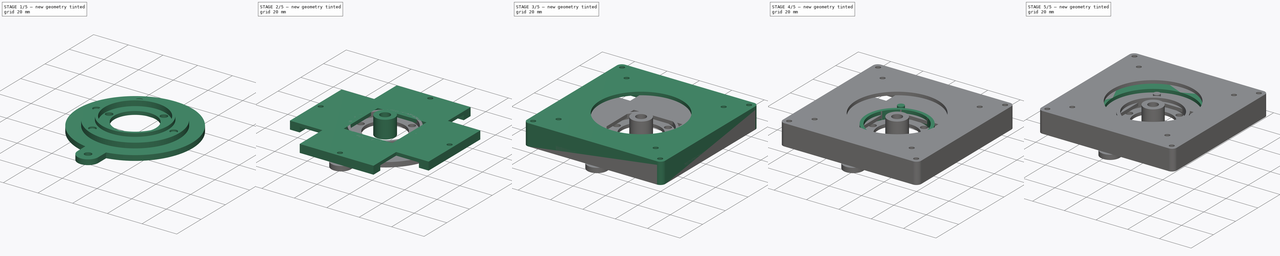
[diagram: build sequence overview — one tinted view per stage of 5, left to right]
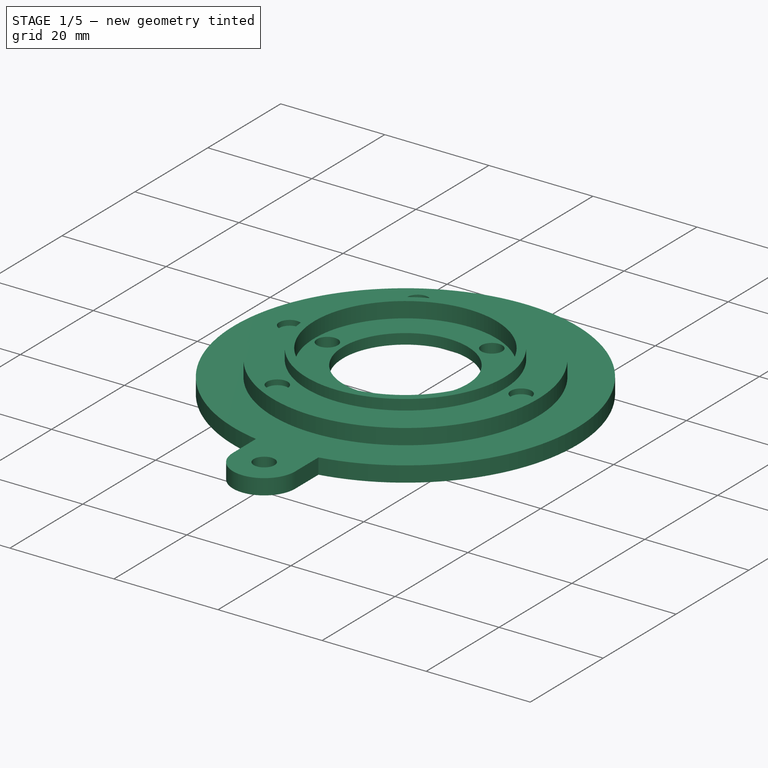
[diagram: stage 1 of 5 — iso view after this stage's code; geometry added in this stage tinted green]
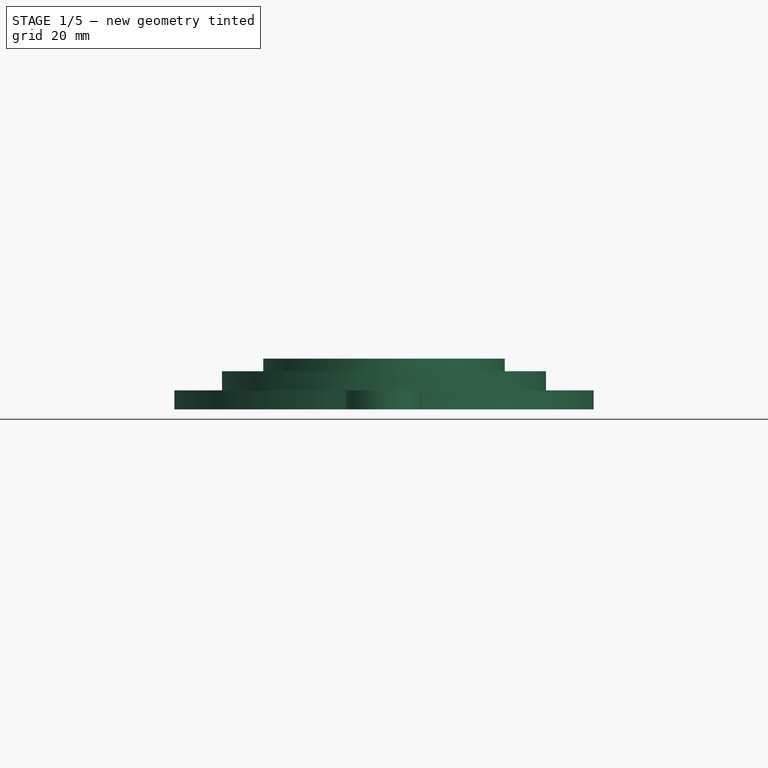
[diagram: stage 1 of 5 — front view after this stage's code; geometry added in this stage tinted green]
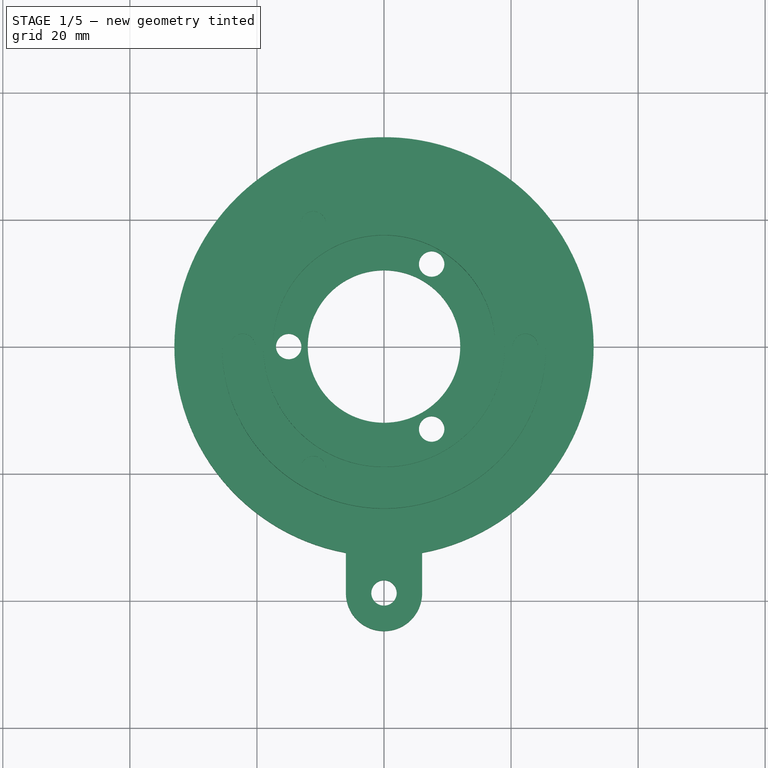
[diagram: stage 1 of 5 — top view after this stage's code; geometry added in this stage tinted green]
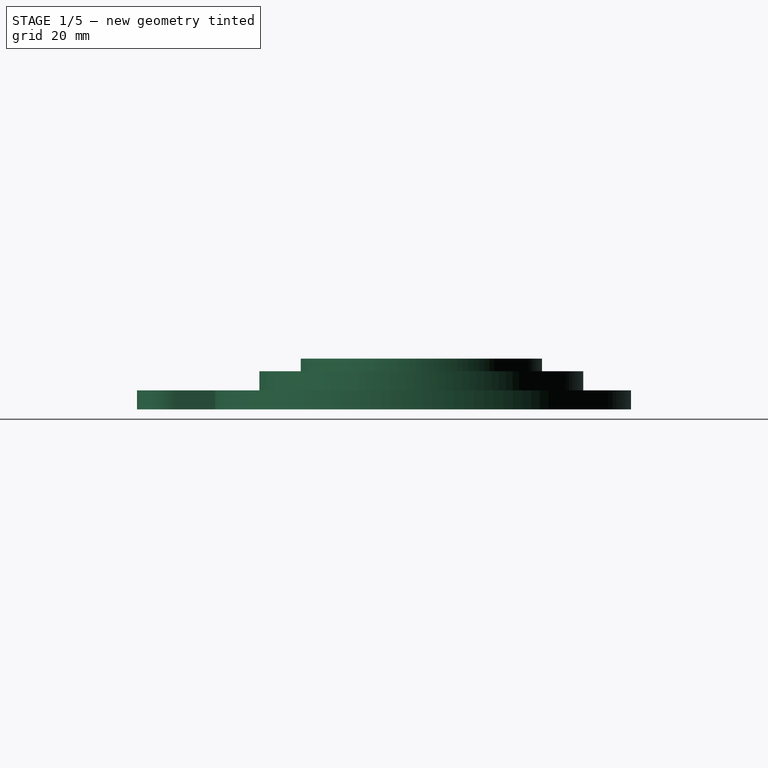
[diagram: stage 1 of 5 — right view after this stage's code; geometry added in this stage tinted green]
FCSTD DOCUMENT  (FreeCAD 0.20R29603 (Git))
Label: psp-lift-tool
License: All rights reserved
LicenseURL: http://en.wikipedia.org/wiki/All_rights_reserved
objects: Sketcher::SketchObject×27, PartDesign::Pad×17, PartDesign::Pocket×10, PartDesign::Body×10, PartDesign::Fillet×2, Part::Refine×1
note: 96 computed .brp shape members not serialized (recipe doc carries the construction recipe); baked Part::Feature solids carry a one-line shape summary decoded from their .brp

FEATURE [PartDesign::Body] Body002  label="ring"
  Group = -> [Sketch006,Pad003,Sketch007,Pad004,Sketch008,Pocket,Sketch009,Pocket001,Fillet002]
  Origin = -> Origin002
  Tip = -> Fillet002
FEATURE [Sketcher::SketchObject] Sketch010
  FullyConstrained = true
  MapMode = 5
  Support = -> [XY_Plane003]
  sketch-geometry (2):
    g0: Circle CenterX=0 CenterY=0 CenterZ=0 NormalX=0 NormalY=0 NormalZ=1 AngleXU=0 Radius=25.5
    g1: Circle CenterX=0 CenterY=0 CenterZ=0 NormalX=0 NormalY=0 NormalZ=1 AngleXU=0 Radius=19
  constraints (4):
    c: Coincident(g0,g-1)
    c: Radius(g0) = 25.5
    c: Coincident(g1,g0)
    c: Radius(g1) = 19
FEATURE [PartDesign::Pad] Pad005
  Direction = (0,0,1)
  Length = 3
  Length2 = 10
  Profile = -> Sketch010
  ReferenceAxis = -> Sketch010 [N_Axis]
  Type = 0
FEATURE [Sketcher::SketchObject] Sketch011
  FullyConstrained = false
  MapMode = 5
  Placement = pos=(0,0,0) rot=(1,0,0;3.14159rad)
  Support = -> [Pad005]
  sketch-geometry (7):
    g0: ArcOfCircle CenterX=0 CenterY=0 CenterZ=0 NormalX=0 NormalY=0 NormalZ=1 AngleXU=0 Radius=33 StartAngle=1.75363 EndAngle=7.67115
    g1: Circle CenterX=0 CenterY=0 CenterZ=0 NormalX=0 NormalY=0 NormalZ=1 AngleXU=0 Radius=19
    g2: LineSegment StartX=6 StartY=38.7567 StartZ=0 EndX=6 EndY=32.45 EndZ=0
    g3: LineSegment StartX=-6 StartY=32.45 StartZ=0 EndX=-6 EndY=38.7566 EndZ=0
    g4: LineSegment StartX=-6 StartY=32.45 StartZ=0 EndX=6 EndY=32.45 EndZ=0
    g5: ArcOfCircle CenterX=0 CenterY=38.7566 CenterZ=0 NormalX=0 NormalY=0 NormalZ=1 AngleXU=0 Radius=6 StartAngle=5.14025e-06 EndAngle=3.14159
    g6: Circle CenterX=0 CenterY=38.7566 CenterZ=0 NormalX=0 NormalY=0 NormalZ=1 AngleXU=0 Radius=2
  constraints (16):
    c: Coincident(g0,g-1)
    c: Coincident(g1,g0)
    c: Radius(g1) = 19
    c: Radius(g0) = 33
    c: Vertical(g2)
    c: Symmetric(g3,g2,g-2)
    c: Coincident(g0,g2)
    c: Coincident(g0,g3)
    c: Coincident(g4,g0)
    c: Coincident(g4,g0)
    c: DistanceX(g4,g4) = 12
    c: PointOnObject(g5,g-2)
    c: Tangent(g5,g3) = 1.5708
    c: Coincident(g5,g2)
    c: Coincident(g6,g5)
    c: Radius(g6) = 2
FEATURE [PartDesign::Pad] Pad006
  BaseFeature = -> Pad005
  Direction = (0,0,-1)
  Length = 3
  Length2 = 10
  Profile = -> Sketch011
  ReferenceAxis = -> Sketch011 [N_Axis]
  Type = 0
FEATURE [PartDesign::Body] Body005  label="manibela"
  Group = -> [Sketch015,Pad009002]
  Origin = -> Origin005
  Placement = pos=(0,0,-2) rot=(0,0,1;0rad)
  Tip = -> Pad009002
FEATURE [PartDesign::Pocket] Pocket002
  BaseFeature = -> Pad006
  Direction = (0,0,-1)
  Length = 5
  Length2 = 5
  Profile = -> Sketch012
  ReferenceAxis = -> Sketch012 [N_Axis]
  Type = 1
FEATURE [PartDesign::Body] Body  label="greep"
  Group = -> [Sketch040,Pad009012]
  Origin = -> Origin
  Tip = -> Pad009012
FEATURE [Sketcher::SketchObject] Sketch041
  FullyConstrained = true
  MapMode = 5
  Support = -> [XY_Plane010]
  sketch-geometry (2):
    g0: Circle CenterX=0 CenterY=0 CenterZ=0 NormalX=0 NormalY=0 NormalZ=1 AngleXU=0 Radius=25.5
    g1: Circle CenterX=0 CenterY=0 CenterZ=0 NormalX=0 NormalY=0 NormalZ=1 AngleXU=0 Radius=19
  constraints (4):
    c: Coincident(g0,g-1)
    c: Radius(g0) = 25.5
    c: Coincident(g1,g0)
    c: Radius(g1) = 19
FEATURE [PartDesign::Pad] Pad009013
  Direction = (0,0,1)
  Length = 2
  Length2 = 10
  Profile = -> Sketch041
  ReferenceAxis = -> Sketch041 [N_Axis]
  Type = 0
FEATURE [PartDesign::Body] Body003003004  label="disk"
  Group = -> [Sketch041,Pad009013,Sketch043,Pocket003007]
  Origin = -> Origin010
  Tip = -> Pocket003007
FEATURE [Part::Refine] Pocket002001
  Source = -> Pocket002
FEATURE [Sketcher::SketchObject] Sketch
  FullyConstrained = true
  MapMode = 5
  Support = -> [XY_Plane011]
  sketch-geometry (2):
    g0: Circle CenterX=0 CenterY=0 CenterZ=0 NormalX=0 NormalY=0 NormalZ=1 AngleXU=0 Radius=19
    g1: Circle CenterX=0 CenterY=0 CenterZ=0 NormalX=0 NormalY=0 NormalZ=1 AngleXU=0 Radius=17.5
  constraints (4):
    c: Coincident(g0,g-1)
    c: Radius(g0) = 19
    c: Coincident(g1,g0)
    c: Radius(g1) = 17.5
FEATURE [Sketcher::SketchObject] Sketch044
  FullyConstrained = true
  MapMode = 5
  Support = -> [XY_Plane011]
  sketch-geometry (9):
    g0: Circle CenterX=0 CenterY=0 CenterZ=0 NormalX=0 NormalY=0 NormalZ=1 AngleXU=0 Radius=21
    g1: Circle CenterX=0 CenterY=0 CenterZ=0 NormalX=0 NormalY=0 NormalZ=1 AngleXU=0 Radius=12
    g2: LineSegment StartX=-15 StartY=0 StartZ=0 EndX=7.5 EndY=-12.9904 EndZ=0
    g3: LineSegment StartX=7.5 StartY=-12.9904 StartZ=0 EndX=7.5 EndY=12.9904 EndZ=0
    g4: LineSegment StartX=7.5 StartY=12.9904 StartZ=0 EndX=-15 EndY=0 EndZ=0
    g5: Circle CenterX=0 CenterY=0 CenterZ=0 NormalX=0 NormalY=0 NormalZ=1 AngleXU=0 Radius=15
    g6: Circle CenterX=-15 CenterY=0 CenterZ=0 NormalX=0 NormalY=0 NormalZ=1 AngleXU=0 Radius=2
    g7: Circle CenterX=7.5 CenterY=-12.9904 CenterZ=0 NormalX=0 NormalY=0 NormalZ=1 AngleXU=0 Radius=2
    g8: Circle CenterX=7.5 CenterY=12.9904 CenterZ=0 NormalX=0 NormalY=0 NormalZ=1 AngleXU=0 Radius=2
  constraints (21):
    c: Coincident(g0,g-1)
    c: Radius(g0) = 21
    c: Coincident(g1,g0)
    c: Radius(g1) = 12
    c: Coincident(g2,g3)
    c: Coincident(g3,g4)
    c: Coincident(g4,g2)
    c: Equal(g2,g3)
    c: Equal(g2,g4)
    c: PointOnObject(g2,g5)
    c: PointOnObject(g3,g5)
    c: PointOnObject(g4,g5)
    c: Coincident(g5,g0)
    c: PointOnObject(g4,g-1)
    c: Radius(g5) = 15
    c: Coincident(g6,g2)
    c: Coincident(g7,g2)
    c: Coincident(g8,g3)
    c: Radius(g8) = 2
    c: Equal(g8,g6)
    c: Equal(g6,g7)
FEATURE [PartDesign::Pad] Pad
  Direction = (0,0,1)
  Length = 5
  Length2 = 10
  Profile = -> Sketch
  ReferenceAxis = -> Sketch [N_Axis]
  Type = 0
FEATURE [PartDesign::Pad] Pad009014
  BaseFeature = -> Pad
  Direction = (0,0,1)
  Length = 2
  Length2 = 10
  Profile = -> Sketch044
  ReferenceAxis = -> Sketch044 [N_Axis]
  Type = 0
FEATURE [PartDesign::Body] Body003003005  label="center"
  Group = -> [Sketch,Pad,Sketch044,Pad009014]
  Origin = -> Origin011
  Placement = pos=(0,0,-3) rot=(0,0,1;0rad)
  Tip = -> Pad009014
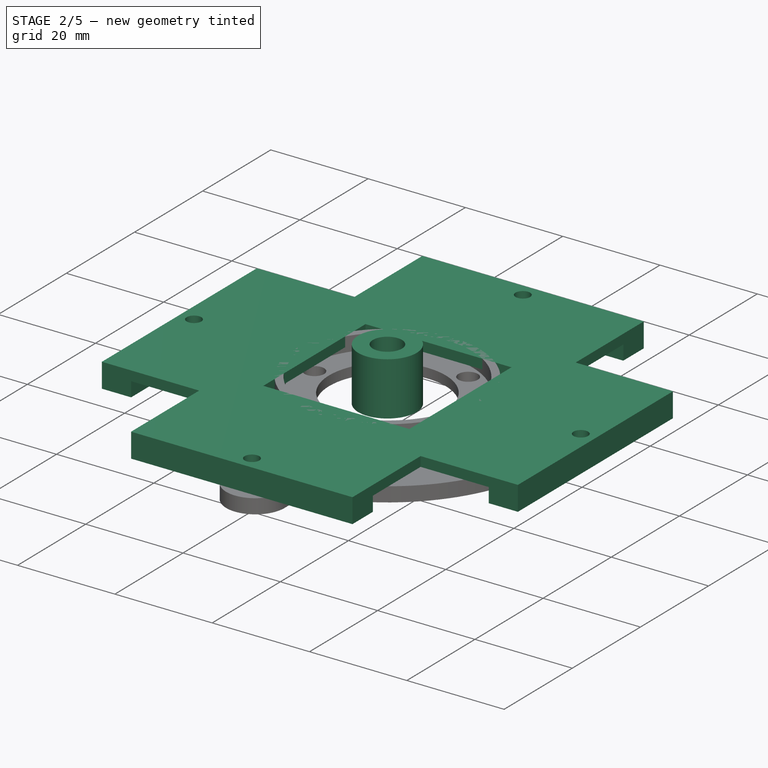
[diagram: stage 2 of 5 — iso view after this stage's code; geometry added in this stage tinted green]
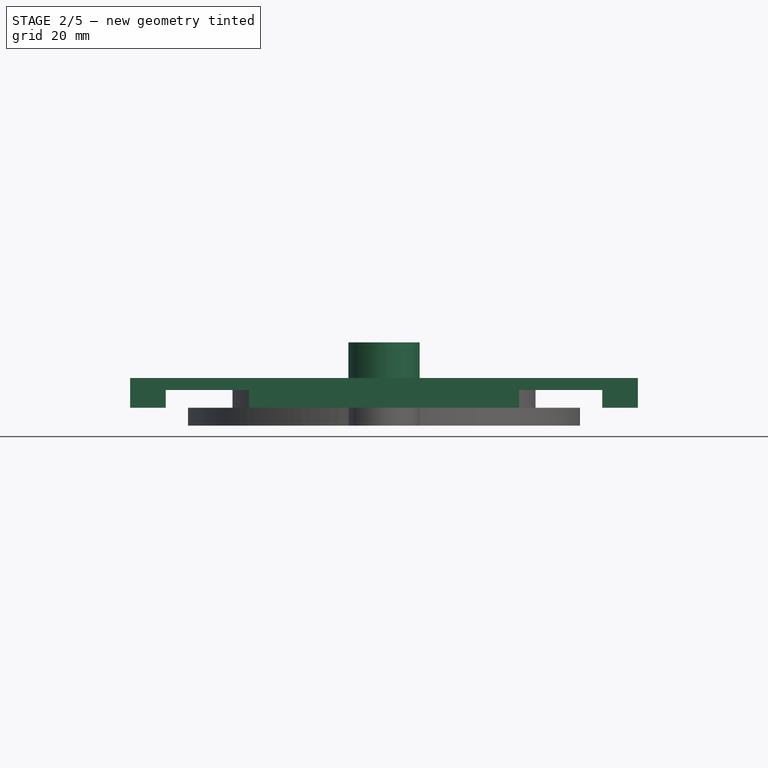
[diagram: stage 2 of 5 — front view after this stage's code; geometry added in this stage tinted green]
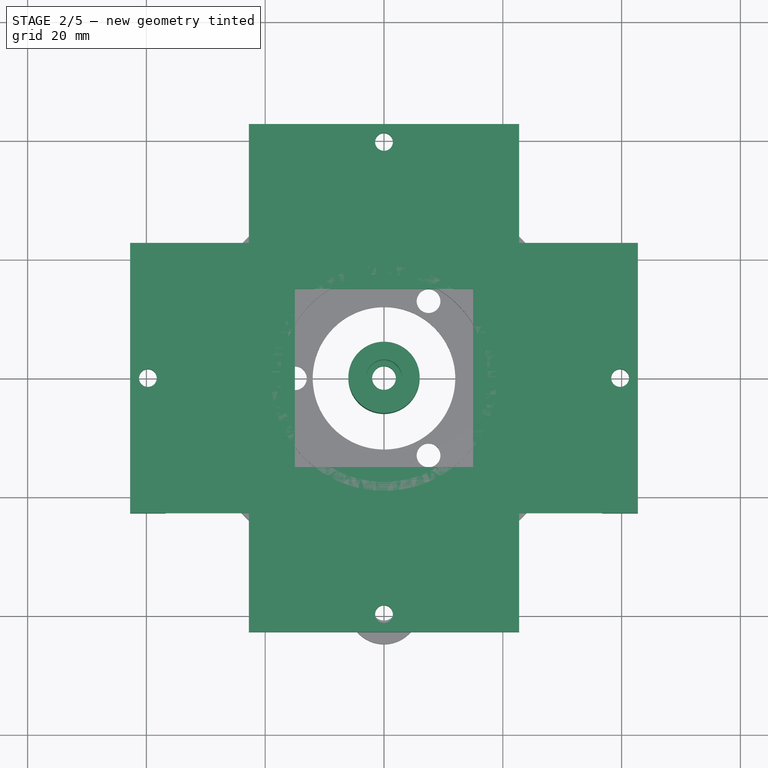
[diagram: stage 2 of 5 — top view after this stage's code; geometry added in this stage tinted green]
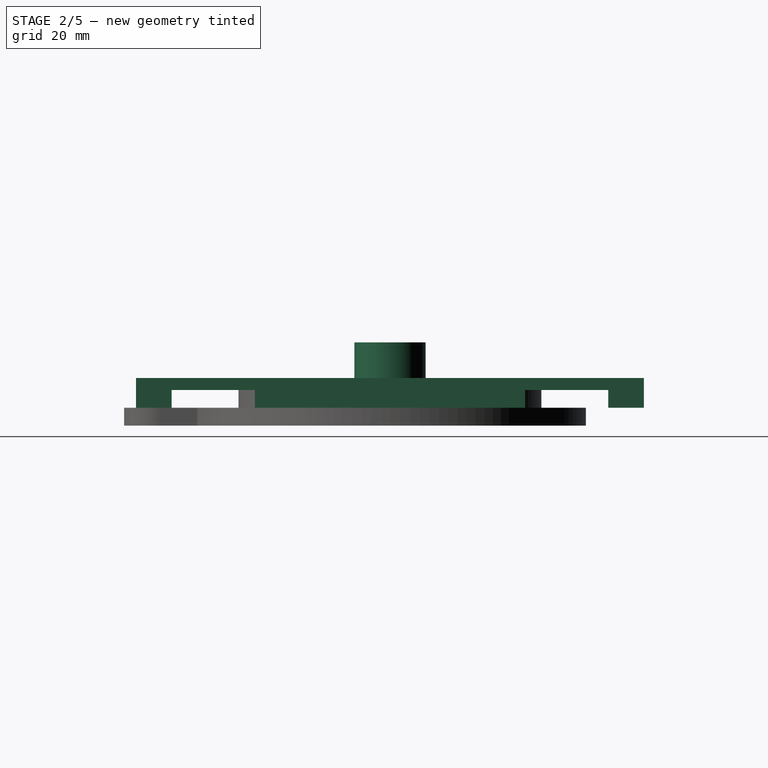
[diagram: stage 2 of 5 — right view after this stage's code; geometry added in this stage tinted green]
FEATURE [PartDesign::Body] Body003003  label="ring-base"
  Group = -> [Sketch021,Pad009006,Sketch022,Pad009007,Sketch023,Pocket003002,Sketch024,Pocket003003,Fillet003,Sketch025,Pocket003004,Sketch026,Pocket003005]
  Origin = -> Origin007
  Tip = -> Pocket003005
FEATURE [Sketcher::SketchObject] Sketch033  label="keepit"
  FullyConstrained = false
  MapMode = 5
  Placement = pos=(0,1e-15,5) rot=(1,0,0;3.14159rad)
  sketch-geometry (20):
    g0: LineSegment StartX=-22.75 StartY=42.75 StartZ=0 EndX=22.75 EndY=42.75 EndZ=0
    g1: LineSegment StartX=42.75 StartY=22.75 StartZ=0 EndX=42.75 EndY=-22.75 EndZ=0
    g2: LineSegment StartX=22.75 StartY=-42.75 StartZ=0 EndX=-22.75 EndY=-42.75 EndZ=0
    g3: LineSegment StartX=-42.75 StartY=-22.75 StartZ=0 EndX=-42.75 EndY=22.75 EndZ=0
    g4: LineSegment StartX=-22.75 StartY=42.75 StartZ=0 EndX=-22.75 EndY=22.75 EndZ=0
    g5: LineSegment StartX=22.75 StartY=42.75 StartZ=0 EndX=22.75 EndY=22.75 EndZ=0
    g6: LineSegment StartX=42.75 StartY=22.75 StartZ=0 EndX=22.75 EndY=22.75 EndZ=0
    g7: LineSegment StartX=42.75 StartY=-22.75 StartZ=0 EndX=22.75 EndY=-22.75 EndZ=0
    g8: LineSegment StartX=-22.75 StartY=-22.75 StartZ=0 EndX=-22.75 EndY=-42.75 EndZ=0
    g9: LineSegment StartX=-22.75 StartY=22.75 StartZ=0 EndX=-42.75 EndY=22.75 EndZ=0
    g10: LineSegment StartX=22.75 StartY=-22.75 StartZ=0 EndX=22.75 EndY=-42.75 EndZ=0
    g11: LineSegment StartX=-22.75 StartY=-22.75 StartZ=0 EndX=-42.75 EndY=-22.75 EndZ=0
    g12: LineSegment StartX=-22.75 StartY=22.75 StartZ=0 EndX=22.75 EndY=22.75 EndZ=0
    g13: LineSegment StartX=22.75 StartY=22.75 StartZ=0 EndX=22.75 EndY=-22.75 EndZ=0
    g14: LineSegment StartX=22.75 StartY=-22.75 StartZ=0 EndX=-22.75 EndY=-22.75 EndZ=0
    g15: LineSegment StartX=-22.75 StartY=-22.75 StartZ=0 EndX=-22.75 EndY=22.75 EndZ=0
    g16: LineSegment StartX=-15 StartY=15 StartZ=0 EndX=15 EndY=15 EndZ=0
    g17: LineSegment StartX=15 StartY=15 StartZ=0 EndX=15 EndY=-15 EndZ=0
    g18: LineSegment StartX=15 StartY=-15 StartZ=0 EndX=-15 EndY=-15 EndZ=0
    g19: LineSegment StartX=-15 StartY=-15 StartZ=0 EndX=-15 EndY=15 EndZ=0
  constraints (47):
    c: Horizontal(g0)
    c: Horizontal(g2)
    c: Vertical(g1)
    c: Vertical(g3)
    c: Coincident(g4,g0)
    c: Coincident(g8,g2)
    c: Vertical(g4)
    c: Coincident(g5,g0)
    c: Coincident(g10,g2)
    c: Vertical(g5)
    c: Coincident(g6,g1)
    c: Coincident(g9,g3)
    c: Horizontal(g6)
    c: Coincident(g7,g1)
    c: Coincident(g11,g3)
    c: Horizontal(g7)
    c: Coincident(g9,g4)
    c: Coincident(g5,g6)
    c: Coincident(g7,g10)
    c: Coincident(g11,g8)
    c: Coincident(g12,g4)
    c: Coincident(g12,g5)
    c: Coincident(g13,g5)
    c: Coincident(g13,g7)
    c: Vertical(g13)
    c: Coincident(g14,g7)
    c: Coincident(g14,g8)
    c: Horizontal(g14)
    c: Coincident(g15,g8)
    c: Coincident(g15,g4)
    c: Symmetric(g4,g5,g-2)
    c: Symmetric(g4,g8,g-1)
    c: Equal(g12,g15)
    c: DistanceX(g0,g0) = 45.5
    c: Equal(g0,g3)
    c: Equal(g3,g2)
    c: Coincident(g16,g17)
    c: Coincident(g17,g18)
    c: Coincident(g18,g19)
    c: Coincident(g19,g16)
    c: Horizontal(g16)
    c: Horizontal(g18)
    c: Vertical(g17)
    c: Vertical(g19)
    c: Symmetric(g16,g18,g-1)
    c: Equal(g19,g16)
    c: DistanceX(g16,g16) = 30
FEATURE [Sketcher::SketchObject] Sketch034
  FullyConstrained = false
  MapMode = 5
  Placement = pos=(0,0,3) rot=(1,0,0;3.14159rad)
  sketch-geometry (16):
    g0: LineSegment StartX=-22.75 StartY=42.75 StartZ=0 EndX=22.75 EndY=42.75 EndZ=0
    g1: LineSegment StartX=22.75 StartY=42.75 StartZ=0 EndX=22.75 EndY=36.75 EndZ=0
    g2: LineSegment StartX=22.75 StartY=36.75 StartZ=0 EndX=-22.75 EndY=36.75 EndZ=0
    g3: LineSegment StartX=-22.75 StartY=36.75 StartZ=0 EndX=-22.75 EndY=42.75 EndZ=0
    g4: LineSegment StartX=-22.75 StartY=-42.75 StartZ=0 EndX=22.75 EndY=-42.75 EndZ=0
    g5: LineSegment StartX=22.75 StartY=-42.75 StartZ=0 EndX=22.75 EndY=-36.75 EndZ=0
    g6: LineSegment StartX=22.75 StartY=-36.75 StartZ=0 EndX=-22.75 EndY=-36.75 EndZ=0
    g7: LineSegment StartX=-22.75 StartY=-36.75 StartZ=0 EndX=-22.75 EndY=-42.75 EndZ=0
    g8: LineSegment StartX=-42.75 StartY=22.75 StartZ=0 EndX=-36.75 EndY=22.75 EndZ=0
    g9: LineSegment StartX=-36.75 StartY=22.75 StartZ=0 EndX=-36.75 EndY=-22.75 EndZ=0
    g10: LineSegment StartX=-36.75 StartY=-22.75 StartZ=0 EndX=-42.75 EndY=-22.75 EndZ=0
    g11: LineSegment StartX=-42.75 StartY=-22.75 StartZ=0 EndX=-42.75 EndY=22.75 EndZ=0
    g12: LineSegment StartX=42.75 StartY=22.75 StartZ=0 EndX=36.75 EndY=22.75 EndZ=0
    g13: LineSegment StartX=36.75 StartY=22.75 StartZ=0 EndX=36.75 EndY=-22.75 EndZ=0
    g14: LineSegment StartX=36.75 StartY=-22.75 StartZ=0 EndX=42.75 EndY=-22.75 EndZ=0
    g15: LineSegment StartX=42.75 StartY=-22.75 StartZ=0 EndX=42.75 EndY=22.75 EndZ=0
  constraints (32):
    c: Coincident(g0,g1)
    c: Coincident(g1,g2)
    c: Coincident(g2,g3)
    c: Coincident(g3,g0)
    c: Horizontal(g0)
    c: Horizontal(g2)
    c: Vertical(g1)
    c: Vertical(g3)
    c: Coincident(g4,g5)
    c: Coincident(g5,g6)
    c: Coincident(g6,g7)
    c: Coincident(g7,g4)
    c: Horizontal(g4)
    c: Horizontal(g6)
    c: Vertical(g5)
    c: Vertical(g7)
    c: Coincident(g8,g9)
    c: Coincident(g9,g10)
    c: Coincident(g10,g11)
    c: Coincident(g11,g8)
    c: Horizontal(g8)
    c: Horizontal(g10)
    c: Vertical(g9)
    c: Vertical(g11)
    c: Coincident(g12,g13)
    c: Coincident(g13,g14)
    c: Coincident(g14,g15)
    c: Coincident(g15,g12)
    c: Horizontal(g12)
    c: Horizontal(g14)
    c: Vertical(g13)
    c: Vertical(g15)
FEATURE [Sketcher::SketchObject] Sketch035
  FullyConstrained = false
  MapMode = 5
  Support = -> [XY_Plane008]
  sketch-geometry (10):
    g0: LineSegment StartX=-39.75 StartY=0 StartZ=0 EndX=0 EndY=-39.75 EndZ=0
    g1: LineSegment StartX=0 StartY=-39.75 StartZ=0 EndX=39.75 EndY=7.1e-15 EndZ=0
    g2: LineSegment StartX=39.75 StartY=7.1e-15 StartZ=0 EndX=7.1e-15 EndY=39.75 EndZ=0
    g3: LineSegment StartX=7.1e-15 StartY=39.75 StartZ=0 EndX=-39.75 EndY=0 EndZ=0
    g4: Circle CenterX=0 CenterY=0 CenterZ=0 NormalX=0 NormalY=0 NormalZ=1 AngleXU=0 Radius=39.75
    g5: LineSegment StartX=-39.75 StartY=-22.75 StartZ=0 EndX=-39.75 EndY=24.0519 EndZ=0
    g6: Circle CenterX=-39.75 CenterY=0 CenterZ=0 NormalX=0 NormalY=0 NormalZ=1 AngleXU=0 Radius=1.5
    g7: Circle CenterX=7.1e-15 CenterY=39.75 CenterZ=0 NormalX=0 NormalY=0 NormalZ=1 AngleXU=0 Radius=1.5
    g8: Circle CenterX=39.75 CenterY=7.1e-15 CenterZ=0 NormalX=0 NormalY=0 NormalZ=1 AngleXU=0 Radius=1.5
    g9: Circle CenterX=0 CenterY=-39.75 CenterZ=0 NormalX=0 NormalY=0 NormalZ=1 AngleXU=0 Radius=1.5
  constraints (22):
    c: Coincident(g0,g1)
    c: Coincident(g1,g2)
    c: Coincident(g2,g3)
    c: Coincident(g3,g0)
    c: Equal(g0,g1)
    c: Equal(g0,g2)
    c: Equal(g0,g3)
    c: PointOnObject(g0,g4)
    c: PointOnObject(g1,g4)
    c: PointOnObject(g2,g4)
    c: PointOnObject(g3,g4)
    c: Coincident(g4,g-1)
    c: PointOnObject(g3,g-1)
    c: PointOnObject(g0,g5)
    c: Coincident(g6,g0)
    c: Radius(g6) = 1.5
    c: Coincident(g7,g2)
    c: Coincident(g8,g1)
    c: Coincident(g9,g0)
    c: Equal(g9,g6)
    c: Equal(g6,g8)
    c: Equal(g8,g7)
FEATURE [PartDesign::Pad] Pad009008
  Direction = (0,-2e-16,-1)
  Length = 2
  Length2 = 10
  Placement = pos=(0,1e-15,5) rot=(1,0,0;3.14159rad)
  Profile = -> Sketch033
  ReferenceAxis = -> Sketch033 [N_Axis]
  Type = 0
FEATURE [PartDesign::Pad] Pad009009
  BaseFeature = -> Pad009008
  Direction = (0,-3e-16,-1)
  Length = 3
  Length2 = 10
  Placement = pos=(0,1e-15,5) rot=(1,0,0;3.14159rad)
  Profile = -> Sketch034
  ReferenceAxis = -> Sketch034 [N_Axis]
  Type = 0
FEATURE [PartDesign::Pocket] Pocket003006
  BaseFeature = -> Pad009009
  Direction = (0,0,-1)
  Length = 5
  Length2 = 5
  Midplane = true
  Placement = pos=(0,1e-15,5) rot=(1,0,0;3.14159rad)
  Profile = -> Sketch035
  ReferenceAxis = -> Sketch035 [N_Axis]
  Type = 1
FEATURE [PartDesign::Body] Body003003002  label="lock"
  Group = -> [Sketch033,Sketch034,Sketch035,Pad009008,Pad009009,Pocket003006]
  Origin = -> Origin008
  Tip = -> Pocket003006
FEATURE [Sketcher::SketchObject] Sketch036
  FullyConstrained = true
  MapMode = 5
  Support = -> [XY_Plane009]
  sketch-geometry (2):
    g0: Circle CenterX=0 CenterY=0 CenterZ=0 NormalX=0 NormalY=0 NormalZ=1 AngleXU=0 Radius=3
    g1: Circle CenterX=0 CenterY=0 CenterZ=0 NormalX=0 NormalY=0 NormalZ=1 AngleXU=0 Radius=2
  constraints (4):
    c: Coincident(g0,g-1)
    c: Radius(g0) = 3
    c: Coincident(g1,g0)
    c: Radius(g1) = 2
FEATURE [PartDesign::Pad] Pad009010
  Direction = (0,0,1)
  Length = 5
  Length2 = 10
  Profile = -> Sketch036
  ReferenceAxis = -> Sketch036 [N_Axis]
  Type = 0
FEATURE [PartDesign::Body] Body003003003  label="polish"
  Group = -> [Sketch036,Pad009010]
  Origin = -> Origin009
  Tip = -> Pad009010
FEATURE [Sketcher::SketchObject] Sketch040
  FullyConstrained = true
  MapMode = 5
  Support = -> [XY_Plane]
  sketch-geometry (2):
    g0: Circle CenterX=0 CenterY=0 CenterZ=0 NormalX=0 NormalY=0 NormalZ=1 AngleXU=0 Radius=3
    g1: Circle CenterX=0 CenterY=0 CenterZ=0 NormalX=0 NormalY=0 NormalZ=1 AngleXU=0 Radius=6
  constraints (4):
    c: Coincident(g0,g-1)
    c: Radius(g0) = 3
    c: Coincident(g1,g0)
    c: Radius(g1) = 6
FEATURE [PartDesign::Pad] Pad009012
  Direction = (0,0,1)
  Length = 11
  Length2 = 10
  Profile = -> Sketch040
  ReferenceAxis = -> Sketch040 [N_Axis]
  Type = 0
FEATURE [Sketcher::SketchObject] Sketch043
  FullyConstrained = false
  MapMode = 5
  Placement = pos=(0,0,2.2) rot=(0,0,1;0rad)
  sketch-geometry (13):
    g0: Circle CenterX=-22.25 CenterY=0 CenterZ=0 NormalX=0 NormalY=0 NormalZ=1 AngleXU=0 Radius=3.25
    g1: LineSegment StartX=-25.5 StartY=3.25 StartZ=0 EndX=-19 EndY=3.25 EndZ=0
    g2: LineSegment StartX=-19 StartY=3.25 StartZ=0 EndX=-19 EndY=-3.25 EndZ=0
    g3: LineSegment StartX=-19 StartY=-3.25 StartZ=0 EndX=-25.5 EndY=-3.25 EndZ=0
    g4: LineSegment StartX=-25.5 StartY=-3.25 StartZ=0 EndX=-25.5 EndY=3.25 EndZ=0
    g5: Circle CenterX=-22.25 CenterY=0 CenterZ=0 NormalX=0 NormalY=0 NormalZ=1 AngleXU=0 Radius=2
    g6: Circle CenterX=22.25 CenterY=0 CenterZ=0 NormalX=0 NormalY=0 NormalZ=1 AngleXU=0 Radius=2
    g7: LineSegment StartX=22.25 StartY=0 StartZ=0 EndX=-11.125 EndY=19.2691 EndZ=0
    g8: LineSegment StartX=-11.125 StartY=19.2691 StartZ=0 EndX=-11.125 EndY=-19.2691 EndZ=0
    g9: LineSegment StartX=-11.125 StartY=-19.2691 StartZ=0 EndX=22.25 EndY=0 EndZ=0
    g10: Circle CenterX=0 CenterY=0 CenterZ=0 NormalX=0 NormalY=0 NormalZ=1 AngleXU=0 Radius=22.25
    g11: Circle CenterX=-11.125 CenterY=19.2691 CenterZ=0 NormalX=0 NormalY=0 NormalZ=1 AngleXU=0 Radius=2
    g12: Circle CenterX=-11.125 CenterY=-19.2691 CenterZ=0 NormalX=0 NormalY=0 NormalZ=1 AngleXU=0 Radius=2
  constraints (30):
    c: PointOnObject(g0,g-1)
    c: Coincident(g1,g2)
    c: Coincident(g2,g3)
    c: Coincident(g3,g4)
    c: Coincident(g4,g1)
    c: Horizontal(g1)
    c: Horizontal(g3)
    c: Vertical(g2)
    c: Vertical(g4)
    c: Tangent(g0,g2)
    c: Tangent(g4,g0)
    c: Tangent(g1,g0)
    c: Tangent(g3,g0)
    c: Coincident(g5,g0)
    c: Radius(g5) = 2
    c: Radius(g6) = 2
    c: Block(g6)
    c: Coincident(g7,g8)
    c: Coincident(g8,g9)
    c: Coincident(g9,g7)
    c: Equal(g7,g8)
    c: Equal(g7,g9)
    c: PointOnObject(g7,g10)
    c: PointOnObject(g8,g10)
    c: PointOnObject(g9,g10)
    c: Coincident(g9,g6)
    c: Coincident(g11,g7)
    c: Coincident(g12,g8)
    c: Equal(g12,g11)
    c: Equal(g11,g6)
FEATURE [PartDesign::Pocket] Pocket003007
  BaseFeature = -> Pad009013
  Direction = (0,0,-1)
  Length = 5
  Length2 = 5
  Profile = -> Sketch043
  ReferenceAxis = -> Sketch043 [N_Axis]
  Type = 0
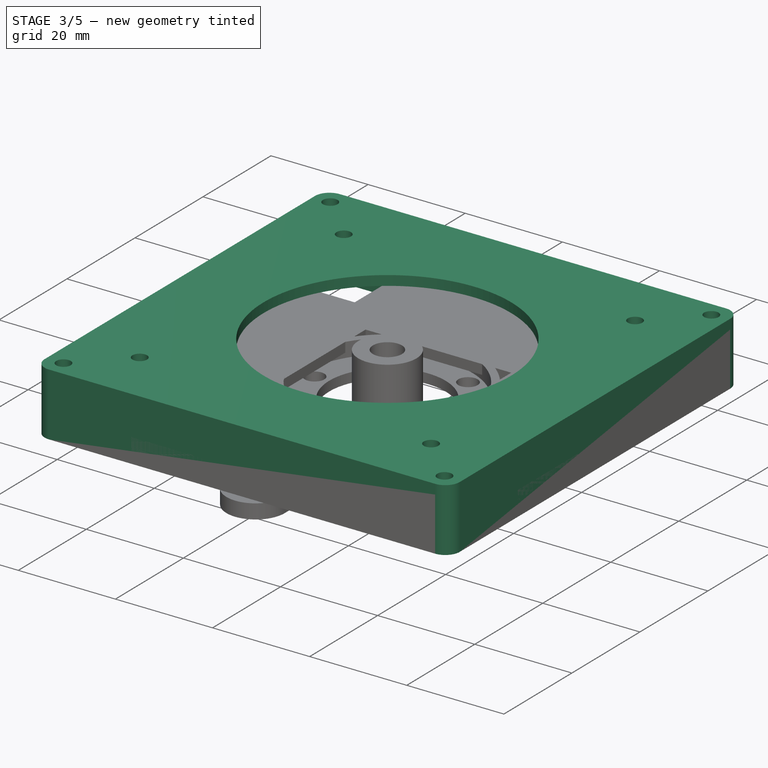
[diagram: stage 3 of 5 — iso view after this stage's code; geometry added in this stage tinted green]
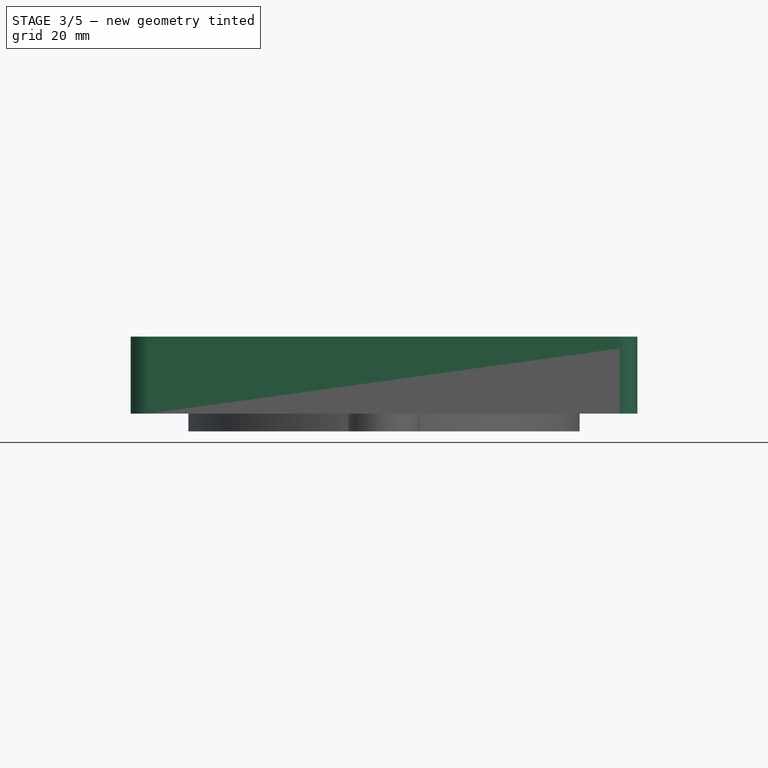
[diagram: stage 3 of 5 — front view after this stage's code; geometry added in this stage tinted green]
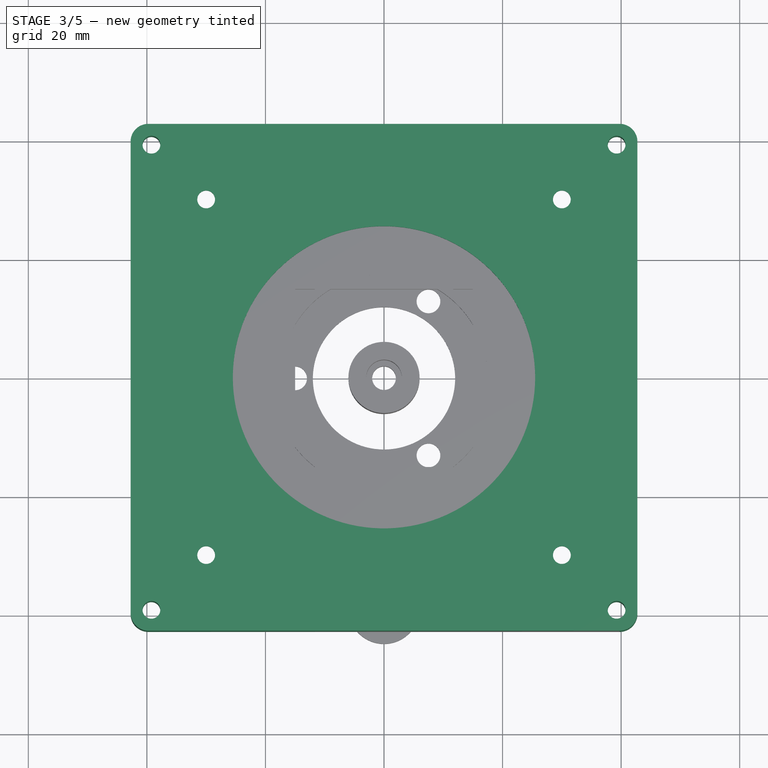
[diagram: stage 3 of 5 — top view after this stage's code; geometry added in this stage tinted green]
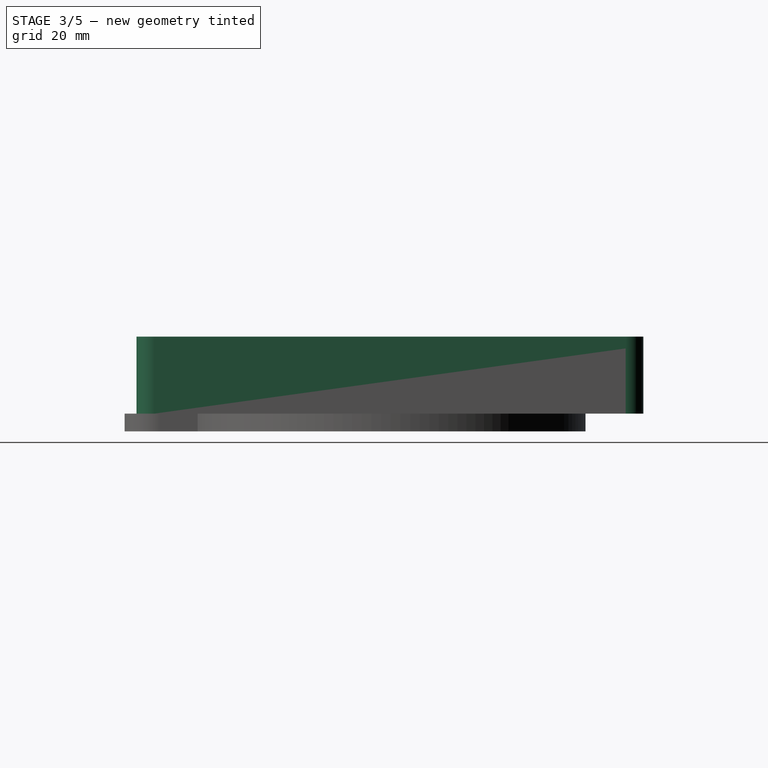
[diagram: stage 3 of 5 — right view after this stage's code; geometry added in this stage tinted green]
FEATURE [PartDesign::Body] Body003002  label="weel-bottom"
  Group = -> [Sketch017,Sketch018,Sketch019,Pad009003,Pad009004,Sketch020,Pad009005,Pocket003]
  Origin = -> Origin006
  Tip = -> Pocket003
FEATURE [Sketcher::SketchObject] Sketch021
  FullyConstrained = true
  MapMode = 5
  Support = -> [XY_Plane007]
  sketch-geometry (10):
    g0: LineSegment StartX=-36.75 StartY=36.75 StartZ=0 EndX=36.75 EndY=36.75 EndZ=0
    g1: LineSegment StartX=36.75 StartY=36.75 StartZ=0 EndX=36.75 EndY=-36.75 EndZ=0
    g2: LineSegment StartX=36.75 StartY=-36.75 StartZ=0 EndX=-36.75 EndY=-36.75 EndZ=0
    g3: LineSegment StartX=-36.75 StartY=-36.75 StartZ=0 EndX=-36.75 EndY=36.75 EndZ=0
    g4: LineSegment StartX=-42.75 StartY=42.75 StartZ=0 EndX=42.75 EndY=42.75 EndZ=0
    g5: LineSegment StartX=42.75 StartY=42.75 StartZ=0 EndX=42.75 EndY=-42.75 EndZ=0
    g6: LineSegment StartX=42.75 StartY=-42.75 StartZ=0 EndX=-42.75 EndY=-42.75 EndZ=0
    g7: LineSegment StartX=-42.75 StartY=-42.75 StartZ=0 EndX=-42.75 EndY=42.75 EndZ=0
    g8: Circle CenterX=-36.75 CenterY=36.75 CenterZ=0 NormalX=0 NormalY=0 NormalZ=1 AngleXU=0 Radius=6
    g9: Circle CenterX=36.75 CenterY=-36.75 CenterZ=0 NormalX=0 NormalY=0 NormalZ=1 AngleXU=0 Radius=6
  constraints (27):
    c: Coincident(g0,g1)
    c: Coincident(g1,g2)
    c: Coincident(g2,g3)
    c: Coincident(g3,g0)
    c: Horizontal(g0)
    c: Horizontal(g2)
    c: Vertical(g1)
    c: Vertical(g3)
    c: Symmetric(g0,g2,g-1)
    c: DistanceX(g0,g0) = 73.5
    c: Equal(g1,g0)
    c: Coincident(g4,g5)
    c: Coincident(g5,g6)
    c: Coincident(g6,g7)
    c: Coincident(g7,g4)
    c: Horizontal(g4)
    c: Horizontal(g6)
    c: Vertical(g5)
    c: Vertical(g7)
    c: Equal(g5,g4)
    c: Coincident(g8,g0)
    c: Radius(g8) = 6
    c: Tangent(g8,g4)
    c: Tangent(g8,g7)
    c: Coincident(g9,g1)
    c: Equal(g9,g8)
    c: Tangent(g9,g6)
FEATURE [PartDesign::Pad] Pad009006
  Direction = (0,0,1)
  Length = 11
  Length2 = 10
  Profile = -> Sketch021
  ReferenceAxis = -> Sketch021 [N_Axis]
  Type = 0
FEATURE [Sketcher::SketchObject] Sketch022
  ExternalGeometry = -> [Pad009006]
  FullyConstrained = true
  MapMode = 5
  Placement = pos=(0,0,11) rot=(0,0,1;0rad)
  Support = -> [Pad009006]
  sketch-geometry (5):
    g0: LineSegment StartX=-42.75 StartY=42.75 StartZ=0 EndX=42.75 EndY=42.75 EndZ=0
    g1: LineSegment StartX=42.75 StartY=42.75 StartZ=0 EndX=42.75 EndY=-42.75 EndZ=0
    g2: LineSegment StartX=42.75 StartY=-42.75 StartZ=0 EndX=-42.75 EndY=-42.75 EndZ=0
    g3: LineSegment StartX=-42.75 StartY=-42.75 StartZ=0 EndX=-42.75 EndY=42.75 EndZ=0
    g4: Circle CenterX=0 CenterY=0 CenterZ=0 NormalX=0 NormalY=0 NormalZ=1 AngleXU=0 Radius=25.5
  constraints (12):
    c: Coincident(g0,g1)
    c: Coincident(g1,g2)
    c: Coincident(g2,g3)
    c: Coincident(g3,g0)
    c: Horizontal(g0)
    c: Horizontal(g2)
    c: Vertical(g1)
    c: Vertical(g3)
    c: Coincident(g0,g-3)
    c: Coincident(g1,g-4)
    c: Coincident(g4,g-1)
    c: Radius(g4) = 25.5
FEATURE [PartDesign::Pad] Pad009007
  BaseFeature = -> Pad009006
  Direction = (0,0,1)
  Length = 2
  Length2 = 10
  Profile = -> Sketch022
  ReferenceAxis = -> Sketch022 [N_Axis]
  Type = 0
FEATURE [Sketcher::SketchObject] Sketch023
  ExternalGeometry = -> [Pad009007]
  FullyConstrained = true
  MapMode = 5
  Placement = pos=(0,0,0) rot=(1,0,0;3.14159rad)
  Support = -> [Pad009007]
  sketch-geometry (9):
    g0: LineSegment StartX=-39.2353 StartY=39.2353 StartZ=0 EndX=39.2353 EndY=39.2353 EndZ=0
    g1: LineSegment StartX=39.2353 StartY=39.2353 StartZ=0 EndX=39.2353 EndY=-39.2353 EndZ=0
    g2: LineSegment StartX=39.2353 StartY=-39.2353 StartZ=0 EndX=-39.2353 EndY=-39.2353 EndZ=0
    g3: LineSegment StartX=-39.2353 StartY=-39.2353 StartZ=0 EndX=-39.2353 EndY=39.2353 EndZ=0
    g4: Circle CenterX=-39.2353 CenterY=39.2353 CenterZ=0 NormalX=0 NormalY=0 NormalZ=1 AngleXU=0 Radius=3.51472
    g5: Circle CenterX=-39.2353 CenterY=39.2353 CenterZ=0 NormalX=0 NormalY=0 NormalZ=1 AngleXU=0 Radius=1.5
    g6: Circle CenterX=39.2353 CenterY=39.2353 CenterZ=0 NormalX=0 NormalY=0 NormalZ=1 AngleXU=0 Radius=1.5
    g7: Circle CenterX=39.2353 CenterY=-39.2353 CenterZ=0 NormalX=0 NormalY=0 NormalZ=1 AngleXU=0 Radius=1.5
    g8: Circle CenterX=-39.2353 CenterY=-39.2353 CenterZ=0 NormalX=0 NormalY=0 NormalZ=1 AngleXU=0 Radius=1.5
  constraints (21):
    c: Coincident(g0,g1)
    c: Coincident(g1,g2)
    c: Coincident(g2,g3)
    c: Coincident(g3,g0)
    c: Horizontal(g0)
    c: Horizontal(g2)
    c: Vertical(g1)
    c: Vertical(g3)
    c: Symmetric(g2,g0,g-1)
    c: Equal(g3,g0)
    c: Coincident(g4,g0)
    c: Tangent(g4,g-3)
    c: PointOnObject(g-5,g4)
    c: Coincident(g5,g0)
    c: Radius(g5) = 1.5
    c: Coincident(g6,g0)
    c: Coincident(g7,g1)
    c: Coincident(g8,g2)
    c: Equal(g5,g6)
    c: Equal(g8,g5)
    c: Equal(g7,g5)
FEATURE [PartDesign::Pocket] Pocket003002
  BaseFeature = -> Pad009007
  Direction = (0,0,1)
  Length = 5
  Length2 = 5
  Profile = -> Sketch023
  ReferenceAxis = -> Sketch023 [N_Axis]
  Type = 1
FEATURE [Sketcher::SketchObject] Sketch024
  FullyConstrained = true
  MapMode = 5
  Placement = pos=(0,0,13) rot=(0,0,1;0rad)
  Support = -> [Pocket003002]
  sketch-geometry (8):
    g0: LineSegment StartX=-30 StartY=30 StartZ=0 EndX=30 EndY=30 EndZ=0
    g1: LineSegment StartX=30 StartY=30 StartZ=0 EndX=30 EndY=-30 EndZ=0
    g2: LineSegment StartX=30 StartY=-30 StartZ=0 EndX=-30 EndY=-30 EndZ=0
    g3: LineSegment StartX=-30 StartY=-30 StartZ=0 EndX=-30 EndY=30 EndZ=0
    g4: Circle CenterX=-30 CenterY=30 CenterZ=0 NormalX=0 NormalY=0 NormalZ=1 AngleXU=0 Radius=1.5
    g5: Circle CenterX=30 CenterY=30 CenterZ=0 NormalX=0 NormalY=0 NormalZ=1 AngleXU=0 Radius=1.5
    g6: Circle CenterX=30 CenterY=-30 CenterZ=0 NormalX=0 NormalY=0 NormalZ=1 AngleXU=0 Radius=1.5
    g7: Circle CenterX=-30 CenterY=-30 CenterZ=0 NormalX=0 NormalY=0 NormalZ=1 AngleXU=0 Radius=1.5
  constraints (19):
    c: Coincident(g0,g1)
    c: Coincident(g1,g2)
    c: Coincident(g2,g3)
    c: Coincident(g3,g0)
    c: Horizontal(g0)
    c: Horizontal(g2)
    c: Vertical(g1)
    c: Vertical(g3)
    c: Symmetric(g2,g0,g-1)
    c: Equal(g3,g0)
    c: DistanceX(g0,g0) = 60
    c: Coincident(g4,g0)
    c: Coincident(g5,g0)
    c: Coincident(g6,g1)
    c: Coincident(g7,g2)
    c: Radius(g4) = 1.5
    c: Equal(g4,g5)
    c: Equal(g5,g6)
    c: Equal(g6,g7)
FEATURE [PartDesign::Pocket] Pocket003003
  BaseFeature = -> Pocket003002
  Direction = (0,0,-1)
  Length = 5
  Length2 = 5
  Profile = -> Sketch024
  ReferenceAxis = -> Sketch024 [N_Axis]
  Type = 0
FEATURE [PartDesign::Fillet] Fillet003
  Base = -> Pocket003003 [Edge2,Edge1,Edge5,Edge8]
  BaseFeature = -> Pocket003003
  Radius = 3
  SupportTransform = false
  UseAllEdges = false
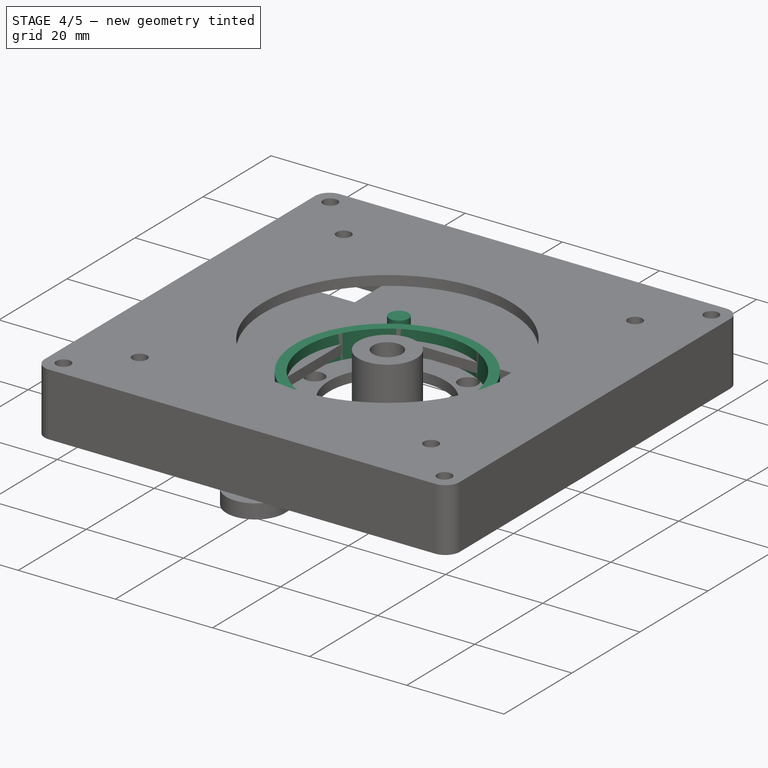
[diagram: stage 4 of 5 — iso view after this stage's code; geometry added in this stage tinted green]
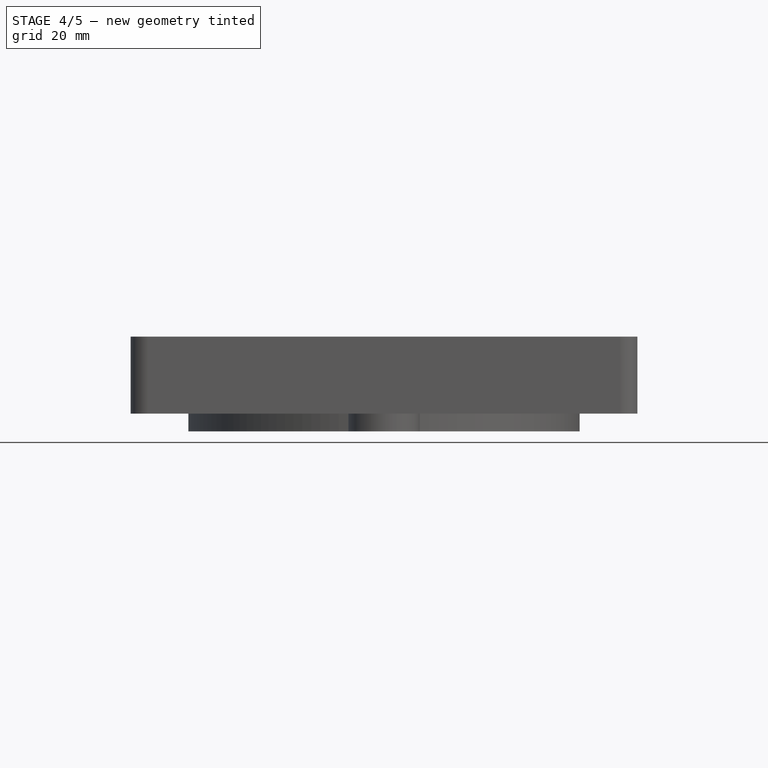
[diagram: stage 4 of 5 — front view after this stage's code; geometry added in this stage tinted green]
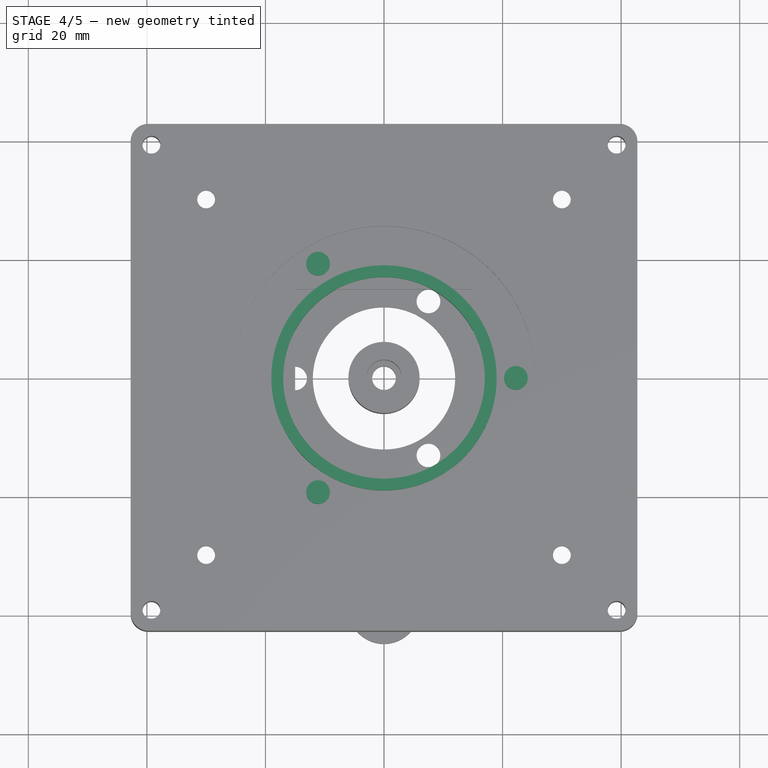
[diagram: stage 4 of 5 — top view after this stage's code; geometry added in this stage tinted green]
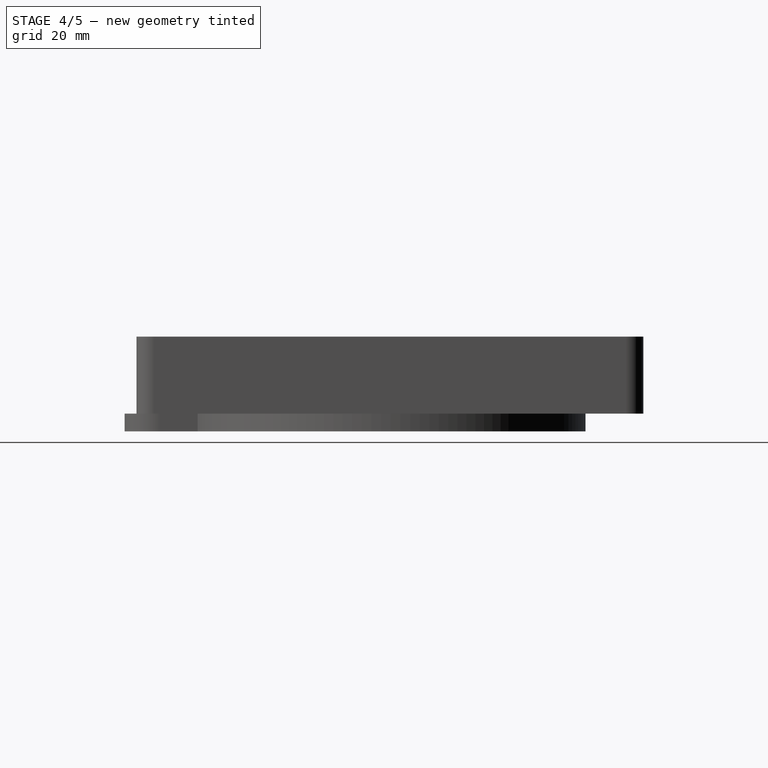
[diagram: stage 4 of 5 — right view after this stage's code; geometry added in this stage tinted green]
FEATURE [PartDesign::Body] Body003  label="weel"
  Group = -> [Sketch010,Pad005,Sketch011,Pad006,Sketch012,Pocket002]
  Origin = -> Origin003
  Tip = -> Pocket002
FEATURE [Sketcher::SketchObject] Sketch017
  FullyConstrained = false
  MapMode = 5
  Placement = pos=(0,0,0) rot=(1,0,0;3.14159rad)
  sketch-geometry (2):
    g0: Circle CenterX=0 CenterY=0 CenterZ=0 NormalX=0 NormalY=0 NormalZ=1 AngleXU=0 Radius=19
    g1: Circle CenterX=0 CenterY=0 CenterZ=0 NormalX=0 NormalY=0 NormalZ=1 AngleXU=0 Radius=28
  constraints (3):
    c: Radius(g0) = 19
    c: Coincident(g1,g0)
    c: Radius(g1) = 28
FEATURE [Sketcher::SketchObject] Sketch018
  FullyConstrained = false
  MapMode = 5
  sketch-geometry (13):
    g0: Circle CenterX=-22.25 CenterY=0 CenterZ=0 NormalX=0 NormalY=0 NormalZ=1 AngleXU=0 Radius=3.25
    g1: LineSegment StartX=-25.5 StartY=3.25 StartZ=0 EndX=-19 EndY=3.25 EndZ=0
    g2: LineSegment StartX=-19 StartY=3.25 StartZ=0 EndX=-19 EndY=-3.25 EndZ=0
    g3: LineSegment StartX=-19 StartY=-3.25 StartZ=0 EndX=-25.5 EndY=-3.25 EndZ=0
    g4: LineSegment StartX=-25.5 StartY=-3.25 StartZ=0 EndX=-25.5 EndY=3.25 EndZ=0
    g5: Circle CenterX=-22.25 CenterY=0 CenterZ=0 NormalX=0 NormalY=0 NormalZ=1 AngleXU=0 Radius=2
    g6: Circle CenterX=22.25 CenterY=0 CenterZ=0 NormalX=0 NormalY=0 NormalZ=1 AngleXU=0 Radius=2
    g7: LineSegment StartX=22.25 StartY=0 StartZ=0 EndX=-11.125 EndY=19.2691 EndZ=0
    g8: LineSegment StartX=-11.125 StartY=19.2691 StartZ=0 EndX=-11.125 EndY=-19.2691 EndZ=0
    g9: LineSegment StartX=-11.125 StartY=-19.2691 StartZ=0 EndX=22.25 EndY=0 EndZ=0
    g10: Circle CenterX=0 CenterY=0 CenterZ=0 NormalX=0 NormalY=0 NormalZ=1 AngleXU=0 Radius=22.25
    g11: Circle CenterX=-11.125 CenterY=19.2691 CenterZ=0 NormalX=0 NormalY=0 NormalZ=1 AngleXU=0 Radius=2
    g12: Circle CenterX=-11.125 CenterY=-19.2691 CenterZ=0 NormalX=0 NormalY=0 NormalZ=1 AngleXU=0 Radius=2
  constraints (30):
    c: PointOnObject(g0,g-1)
    c: Coincident(g1,g2)
    c: Coincident(g2,g3)
    c: Coincident(g3,g4)
    c: Coincident(g4,g1)
    c: Horizontal(g1)
    c: Horizontal(g3)
    c: Vertical(g2)
    c: Vertical(g4)
    c: Tangent(g0,g2)
    c: Tangent(g4,g0)
    c: Tangent(g1,g0)
    c: Tangent(g3,g0)
    c: Coincident(g5,g0)
    c: Radius(g5) = 2
    c: Radius(g6) = 2
    c: Block(g6)
    c: Coincident(g7,g8)
    c: Coincident(g8,g9)
    c: Coincident(g9,g7)
    c: Equal(g7,g8)
    c: Equal(g7,g9)
    c: PointOnObject(g7,g10)
    c: PointOnObject(g8,g10)
    c: PointOnObject(g9,g10)
    c: Coincident(g9,g6)
    c: Coincident(g11,g7)
    c: Coincident(g12,g8)
    c: Equal(g12,g11)
    c: Equal(g11,g6)
FEATURE [Sketcher::SketchObject] Sketch019
  FullyConstrained = true
  MapMode = 5
  Support = -> [XY_Plane006]
  sketch-geometry (2):
    g0: Circle CenterX=0 CenterY=0 CenterZ=0 NormalX=0 NormalY=0 NormalZ=1 AngleXU=0 Radius=19
    g1: Circle CenterX=0 CenterY=0 CenterZ=0 NormalX=0 NormalY=0 NormalZ=1 AngleXU=0 Radius=17
  constraints (4):
    c: Coincident(g0,g-1)
    c: Radius(g0) = 19
    c: Coincident(g1,g0)
    c: Radius(g1) = 17
FEATURE [PartDesign::Pad] Pad009003
  Direction = (0,0,1)
  Length = 7
  Length2 = 10
  Profile = -> Sketch019
  ReferenceAxis = -> Sketch019 [N_Axis]
  Type = 0
FEATURE [PartDesign::Pad] Pad009004
  BaseFeature = -> Pad009003
  Direction = (0,0,-1)
  Length = 2
  Length2 = 10
  Profile = -> Sketch017
  ReferenceAxis = -> Sketch017 [N_Axis]
  Reversed = true
  Type = 0
FEATURE [Sketcher::SketchObject] Sketch020
  FullyConstrained = false
  MapMode = 5
  Placement = pos=(0,0,2.2) rot=(0,0,1;0rad)
  sketch-geometry (6):
    g0: Circle CenterX=-22.25 CenterY=0 CenterZ=0 NormalX=0 NormalY=0 NormalZ=1 AngleXU=0 Radius=3.25
    g1: LineSegment StartX=-25.5 StartY=3.25 StartZ=0 EndX=-19 EndY=3.25 EndZ=0
    g2: LineSegment StartX=-19 StartY=3.25 StartZ=0 EndX=-19 EndY=-3.25 EndZ=0
    g3: LineSegment StartX=-19 StartY=-3.25 StartZ=0 EndX=-25.5 EndY=-3.25 EndZ=0
    g4: LineSegment StartX=-25.5 StartY=-3.25 StartZ=0 EndX=-25.5 EndY=3.25 EndZ=0
    g5: Circle CenterX=-22.25 CenterY=0 CenterZ=0 NormalX=0 NormalY=0 NormalZ=1 AngleXU=0 Radius=2
  constraints (15):
    c: PointOnObject(g0,g-1)
    c: Coincident(g1,g2)
    c: Coincident(g2,g3)
    c: Coincident(g3,g4)
    c: Coincident(g4,g1)
    c: Horizontal(g1)
    c: Horizontal(g3)
    c: Vertical(g2)
    c: Vertical(g4)
    c: Tangent(g0,g2)
    c: Tangent(g4,g0)
    c: Tangent(g1,g0)
    c: Tangent(g3,g0)
    c: Coincident(g5,g0)
    c: Radius(g5) = 2
FEATURE [PartDesign::Pad] Pad009005
  BaseFeature = -> Pad009004
  Direction = (0,0,1)
  Length = 7
  Length2 = 10
  Profile = -> Sketch018
  ReferenceAxis = -> Sketch018 [N_Axis]
  Type = 0
FEATURE [PartDesign::Pocket] Pocket003
  BaseFeature = -> Pad009005
  Direction = (0,0,-1)
  Length = 5
  Length2 = 5
  Profile = -> Sketch020
  ReferenceAxis = -> Sketch020 [N_Axis]
  Type = 0
FEATURE [Sketcher::SketchObject] Sketch025
  FullyConstrained = true
  MapMode = 5
  Placement = pos=(0,42.75,0) rot=(0,0.707107,0.707107;3.14159rad)
  Support = -> [Fillet003]
  sketch-geometry (4):
    g0: LineSegment StartX=-22.75 StartY=0 StartZ=0 EndX=22.75 EndY=0 EndZ=0
    g1: LineSegment StartX=22.75 StartY=0 StartZ=0 EndX=22.75 EndY=5 EndZ=0
    g2: LineSegment StartX=22.75 StartY=5 StartZ=0 EndX=-22.75 EndY=5 EndZ=0
    g3: LineSegment StartX=-22.75 StartY=5 StartZ=0 EndX=-22.75 EndY=0 EndZ=0
  constraints (11):
    c: Coincident(g0,g1)
    c: Coincident(g1,g2)
    c: Coincident(g2,g3)
    c: Coincident(g3,g0)
    c: Horizontal(g2)
    c: Vertical(g1)
    c: Vertical(g3)
    c: PointOnObject(g0,g-1)
    c: Symmetric(g0,g0,g-2)
    c: DistanceY(g3,g3) = 5
    c: DistanceX(g0,g0) = 45.5
FEATURE [PartDesign::Pocket] Pocket003004
  BaseFeature = -> Fillet003
  Direction = (0,-1,2e-16)
  Length = 5
  Length2 = 5
  Midplane = true
  Profile = -> Sketch025
  ReferenceAxis = -> Sketch025 [N_Axis]
  Type = 1
FEATURE [Sketcher::SketchObject] Sketch026
  ExternalGeometry = -> [Pocket003004]
  FullyConstrained = true
  MapMode = 5
  Placement = pos=(42.75,0,0) rot=(0.57735,0.57735,0.57735;2.0944rad)
  Support = -> [Pocket003004]
  sketch-geometry (4):
    g0: LineSegment StartX=-22.75 StartY=0 StartZ=0 EndX=22.75 EndY=0 EndZ=0
    g1: LineSegment StartX=22.75 StartY=0 StartZ=0 EndX=22.75 EndY=5 EndZ=0
    g2: LineSegment StartX=22.75 StartY=5 StartZ=0 EndX=-22.75 EndY=5 EndZ=0
    g3: LineSegment StartX=-22.75 StartY=5 StartZ=0 EndX=-22.75 EndY=0 EndZ=0
  constraints (11):
    c: Coincident(g0,g1)
    c: Coincident(g1,g2)
    c: Coincident(g2,g3)
    c: Coincident(g3,g0)
    c: Horizontal(g2)
    c: Vertical(g1)
    c: Vertical(g3)
    c: PointOnObject(g0,g-1)
    c: Symmetric(g0,g0,g-2)
    c: DistanceY(g3,g3) = 5
    c: Distance(g2,g-3) = 20
FEATURE [PartDesign::Pocket] Pocket003005
  BaseFeature = -> Pocket003004
  Direction = (-1,0,0)
  Length = 5
  Length2 = 5
  Profile = -> Sketch026
  ReferenceAxis = -> Sketch026 [N_Axis]
  Type = 1
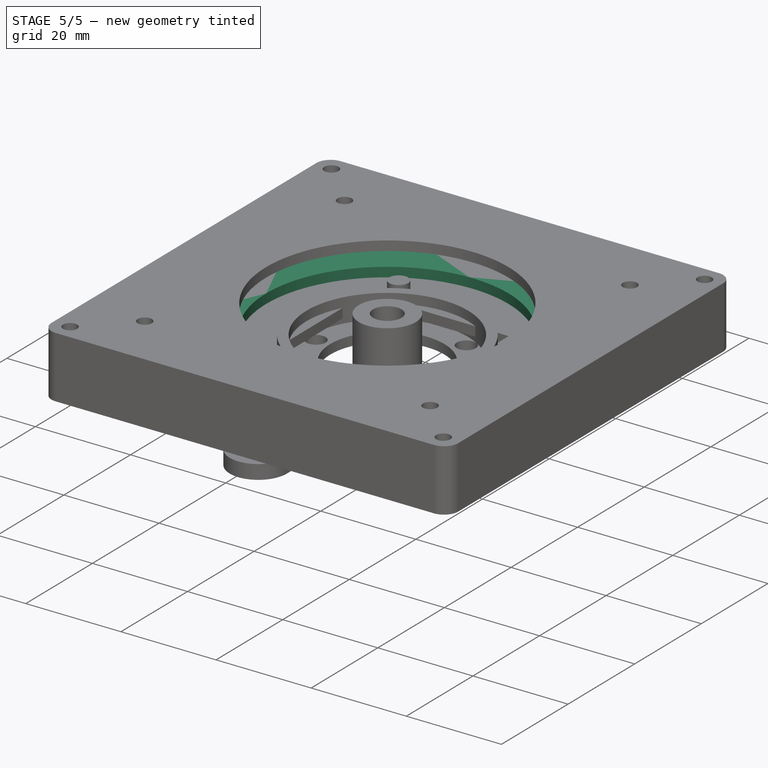
[diagram: stage 5 of 5 — iso view after this stage's code; geometry added in this stage tinted green]
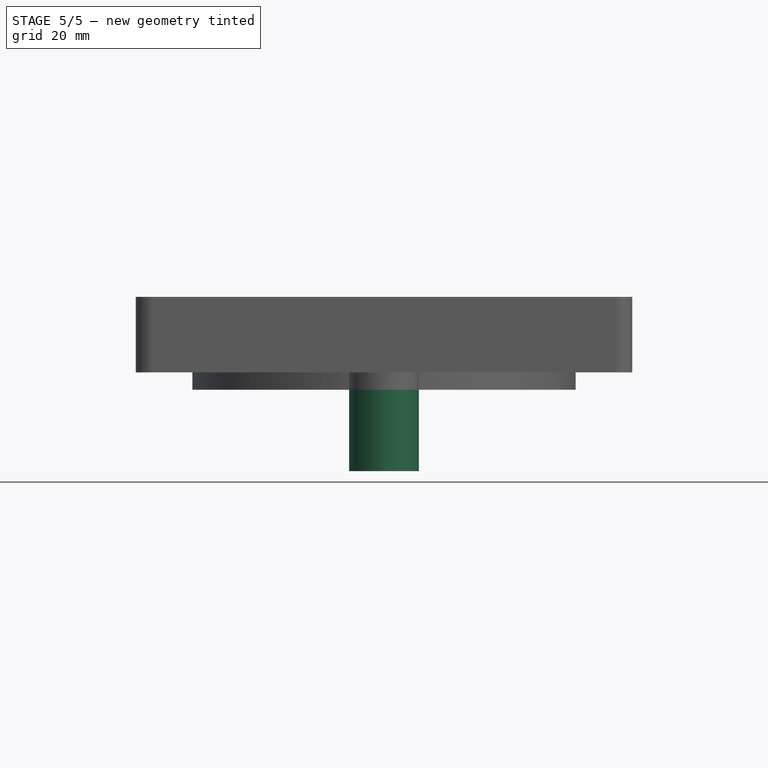
[diagram: stage 5 of 5 — front view after this stage's code; geometry added in this stage tinted green]
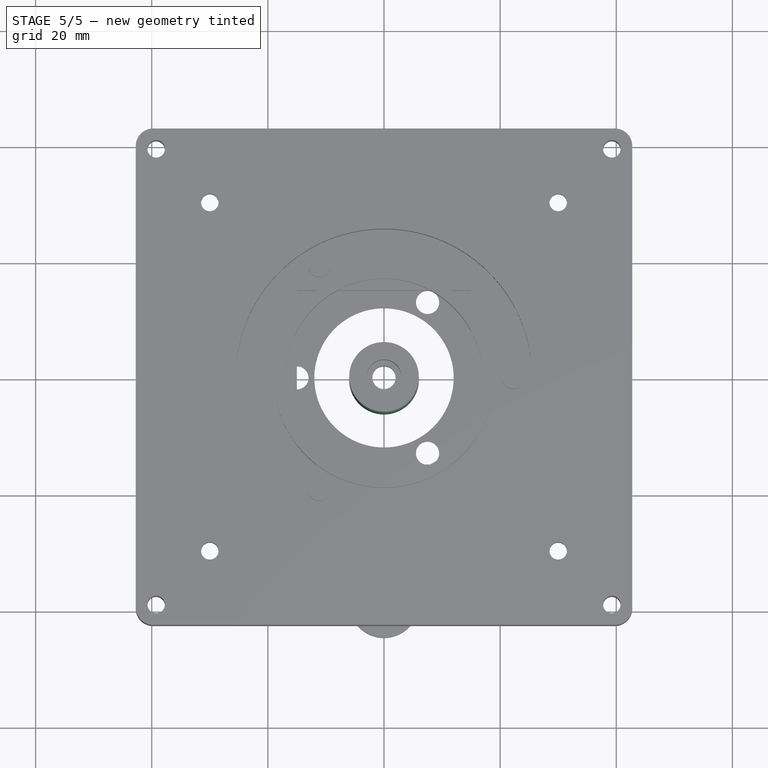
[diagram: stage 5 of 5 — top view after this stage's code; geometry added in this stage tinted green]
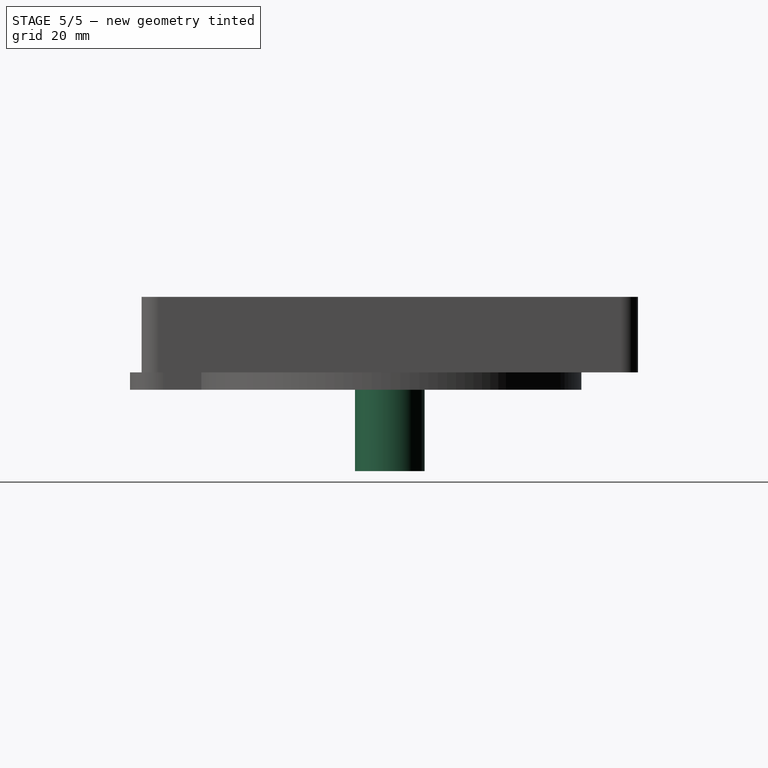
[diagram: stage 5 of 5 — right view after this stage's code; geometry added in this stage tinted green]
FEATURE [Sketcher::SketchObject] Sketch006
  FullyConstrained = true
  MapMode = 5
  Support = -> [XY_Plane002]
  sketch-geometry (10):
    g0: LineSegment StartX=-36.75 StartY=36.75 StartZ=0 EndX=36.75 EndY=36.75 EndZ=0
    g1: LineSegment StartX=36.75 StartY=36.75 StartZ=0 EndX=36.75 EndY=-36.75 EndZ=0
    g2: LineSegment StartX=36.75 StartY=-36.75 StartZ=0 EndX=-36.75 EndY=-36.75 EndZ=0
    g3: LineSegment StartX=-36.75 StartY=-36.75 StartZ=0 EndX=-36.75 EndY=36.75 EndZ=0
    g4: LineSegment StartX=-42.75 StartY=42.75 StartZ=0 EndX=42.75 EndY=42.75 EndZ=0
    g5: LineSegment StartX=42.75 StartY=42.75 StartZ=0 EndX=42.75 EndY=-42.75 EndZ=0
    g6: LineSegment StartX=42.75 StartY=-42.75 StartZ=0 EndX=-42.75 EndY=-42.75 EndZ=0
    g7: LineSegment StartX=-42.75 StartY=-42.75 StartZ=0 EndX=-42.75 EndY=42.75 EndZ=0
    g8: Circle CenterX=-36.75 CenterY=36.75 CenterZ=0 NormalX=0 NormalY=0 NormalZ=1 AngleXU=0 Radius=6
    g9: Circle CenterX=36.75 CenterY=-36.75 CenterZ=0 NormalX=0 NormalY=0 NormalZ=1 AngleXU=0 Radius=6
  constraints (27):
    c: Coincident(g0,g1)
    c: Coincident(g1,g2)
    c: Coincident(g2,g3)
    c: Coincident(g3,g0)
    c: Horizontal(g0)
    c: Horizontal(g2)
    c: Vertical(g1)
    c: Vertical(g3)
    c: Symmetric(g0,g2,g-1)
    c: DistanceX(g0,g0) = 73.5
    c: Equal(g1,g0)
    c: Coincident(g4,g5)
    c: Coincident(g5,g6)
    c: Coincident(g6,g7)
    c: Coincident(g7,g4)
    c: Horizontal(g4)
    c: Horizontal(g6)
    c: Vertical(g5)
    c: Vertical(g7)
    c: Equal(g5,g4)
    c: Coincident(g8,g0)
    c: Radius(g8) = 6
    c: Tangent(g8,g4)
    c: Tangent(g8,g7)
    c: Coincident(g9,g1)
    c: Equal(g9,g8)
    c: Tangent(g9,g6)
FEATURE [PartDesign::Pad] Pad003
  Direction = (0,0,1)
  Length = 6
  Length2 = 10
  Profile = -> Sketch006
  ReferenceAxis = -> Sketch006 [N_Axis]
  Type = 0
FEATURE [Sketcher::SketchObject] Sketch007
  ExternalGeometry = -> [Pad003]
  FullyConstrained = true
  MapMode = 5
  Placement = pos=(0,0,6) rot=(0,0,1;0rad)
  Support = -> [Pad003]
  sketch-geometry (5):
    g0: LineSegment StartX=-42.75 StartY=42.75 StartZ=0 EndX=42.75 EndY=42.75 EndZ=0
    g1: LineSegment StartX=42.75 StartY=42.75 StartZ=0 EndX=42.75 EndY=-42.75 EndZ=0
    g2: LineSegment StartX=42.75 StartY=-42.75 StartZ=0 EndX=-42.75 EndY=-42.75 EndZ=0
    g3: LineSegment StartX=-42.75 StartY=-42.75 StartZ=0 EndX=-42.75 EndY=42.75 EndZ=0
    g4: Circle CenterX=0 CenterY=0 CenterZ=0 NormalX=0 NormalY=0 NormalZ=1 AngleXU=0 Radius=25.5
  constraints (12):
    c: Coincident(g0,g1)
    c: Coincident(g1,g2)
    c: Coincident(g2,g3)
    c: Coincident(g3,g0)
    c: Horizontal(g0)
    c: Horizontal(g2)
    c: Vertical(g1)
    c: Vertical(g3)
    c: Coincident(g0,g-3)
    c: Coincident(g1,g-4)
    c: Coincident(g4,g-1)
    c: Radius(g4) = 25.5
FEATURE [PartDesign::Pad] Pad004
  BaseFeature = -> Pad003
  Direction = (0,0,1)
  Length = 2
  Length2 = 10
  Profile = -> Sketch007
  ReferenceAxis = -> Sketch007 [N_Axis]
  Type = 0
FEATURE [Sketcher::SketchObject] Sketch008
  ExternalGeometry = -> [Pad004]
  FullyConstrained = true
  MapMode = 5
  Placement = pos=(0,0,0) rot=(1,0,0;3.14159rad)
  Support = -> [Pad004]
  sketch-geometry (9):
    g0: LineSegment StartX=-39.2353 StartY=39.2353 StartZ=0 EndX=39.2353 EndY=39.2353 EndZ=0
    g1: LineSegment StartX=39.2353 StartY=39.2353 StartZ=0 EndX=39.2353 EndY=-39.2353 EndZ=0
    g2: LineSegment StartX=39.2353 StartY=-39.2353 StartZ=0 EndX=-39.2353 EndY=-39.2353 EndZ=0
    g3: LineSegment StartX=-39.2353 StartY=-39.2353 StartZ=0 EndX=-39.2353 EndY=39.2353 EndZ=0
    g4: Circle CenterX=-39.2353 CenterY=39.2353 CenterZ=0 NormalX=0 NormalY=0 NormalZ=1 AngleXU=0 Radius=3.51472
    g5: Circle CenterX=-39.2353 CenterY=39.2353 CenterZ=0 NormalX=0 NormalY=0 NormalZ=1 AngleXU=0 Radius=1.5
    g6: Circle CenterX=39.2353 CenterY=39.2353 CenterZ=0 NormalX=0 NormalY=0 NormalZ=1 AngleXU=0 Radius=1.5
    g7: Circle CenterX=39.2353 CenterY=-39.2353 CenterZ=0 NormalX=0 NormalY=0 NormalZ=1 AngleXU=0 Radius=1.5
    g8: Circle CenterX=-39.2353 CenterY=-39.2353 CenterZ=0 NormalX=0 NormalY=0 NormalZ=1 AngleXU=0 Radius=1.5
  constraints (21):
    c: Coincident(g0,g1)
    c: Coincident(g1,g2)
    c: Coincident(g2,g3)
    c: Coincident(g3,g0)
    c: Horizontal(g0)
    c: Horizontal(g2)
    c: Vertical(g1)
    c: Vertical(g3)
    c: Symmetric(g2,g0,g-1)
    c: Equal(g3,g0)
    c: Coincident(g4,g0)
    c: Tangent(g4,g-3)
    c: PointOnObject(g-5,g4)
    c: Coincident(g5,g0)
    c: Radius(g5) = 1.5
    c: Coincident(g6,g0)
    c: Coincident(g7,g1)
    c: Coincident(g8,g2)
    c: Equal(g5,g6)
    c: Equal(g8,g5)
    c: Equal(g7,g5)
FEATURE [PartDesign::Pocket] Pocket
  BaseFeature = -> Pad004
  Direction = (0,0,1)
  Length = 5
  Length2 = 5
  Profile = -> Sketch008
  ReferenceAxis = -> Sketch008 [N_Axis]
  Type = 1
FEATURE [Sketcher::SketchObject] Sketch009
  FullyConstrained = true
  MapMode = 5
  Placement = pos=(0,0,8) rot=(0,0,1;0rad)
  Support = -> [Pocket]
  sketch-geometry (8):
    g0: LineSegment StartX=-30 StartY=30 StartZ=0 EndX=30 EndY=30 EndZ=0
    g1: LineSegment StartX=30 StartY=30 StartZ=0 EndX=30 EndY=-30 EndZ=0
    g2: LineSegment StartX=30 StartY=-30 StartZ=0 EndX=-30 EndY=-30 EndZ=0
    g3: LineSegment StartX=-30 StartY=-30 StartZ=0 EndX=-30 EndY=30 EndZ=0
    g4: Circle CenterX=-30 CenterY=30 CenterZ=0 NormalX=0 NormalY=0 NormalZ=1 AngleXU=0 Radius=1.5
    g5: Circle CenterX=30 CenterY=30 CenterZ=0 NormalX=0 NormalY=0 NormalZ=1 AngleXU=0 Radius=1.5
    g6: Circle CenterX=30 CenterY=-30 CenterZ=0 NormalX=0 NormalY=0 NormalZ=1 AngleXU=0 Radius=1.5
    g7: Circle CenterX=-30 CenterY=-30 CenterZ=0 NormalX=0 NormalY=0 NormalZ=1 AngleXU=0 Radius=1.5
  constraints (19):
    c: Coincident(g0,g1)
    c: Coincident(g1,g2)
    c: Coincident(g2,g3)
    c: Coincident(g3,g0)
    c: Horizontal(g0)
    c: Horizontal(g2)
    c: Vertical(g1)
    c: Vertical(g3)
    c: Symmetric(g2,g0,g-1)
    c: Equal(g3,g0)
    c: DistanceX(g0,g0) = 60
    c: Coincident(g4,g0)
    c: Coincident(g5,g0)
    c: Coincident(g6,g1)
    c: Coincident(g7,g2)
    c: Radius(g4) = 1.5
    c: Equal(g4,g5)
    c: Equal(g5,g6)
    c: Equal(g6,g7)
FEATURE [PartDesign::Pocket] Pocket001
  BaseFeature = -> Pocket
  Direction = (0,0,-1)
  Length = 5
  Length2 = 5
  Profile = -> Sketch009
  ReferenceAxis = -> Sketch009 [N_Axis]
  Type = 0
FEATURE [PartDesign::Fillet] Fillet002
  Base = -> Pocket001 [Edge2,Edge1,Edge5,Edge8]
  BaseFeature = -> Pocket001
  Radius = 3
  SupportTransform = false
  UseAllEdges = false
FEATURE [Sketcher::SketchObject] Sketch012
  ExternalGeometry = -> [Pad006]
  FullyConstrained = true
  MapMode = 5
  Placement = pos=(0,0,3) rot=(0,0,1;0rad)
  Support = -> [Pad006]
  sketch-geometry (13):
    g0: Circle CenterX=-22.25 CenterY=0 CenterZ=0 NormalX=0 NormalY=0 NormalZ=1 AngleXU=0 Radius=3.25
    g1: LineSegment StartX=-25.5 StartY=3.25 StartZ=0 EndX=-19 EndY=3.25 EndZ=0
    g2: LineSegment StartX=-19 StartY=3.25 StartZ=0 EndX=-19 EndY=-3.25 EndZ=0
    g3: LineSegment StartX=-19 StartY=-3.25 StartZ=0 EndX=-25.5 EndY=-3.25 EndZ=0
    g4: LineSegment StartX=-25.5 StartY=-3.25 StartZ=0 EndX=-25.5 EndY=3.25 EndZ=0
    g5: Circle CenterX=-22.25 CenterY=0 CenterZ=0 NormalX=0 NormalY=0 NormalZ=1 AngleXU=0 Radius=2
    g6: Circle CenterX=22.25 CenterY=0 CenterZ=0 NormalX=0 NormalY=0 NormalZ=1 AngleXU=0 Radius=2
    g7: LineSegment StartX=22.25 StartY=0 StartZ=0 EndX=-11.125 EndY=19.2691 EndZ=0
    g8: LineSegment StartX=-11.125 StartY=19.2691 StartZ=0 EndX=-11.125 EndY=-19.2691 EndZ=0
    g9: LineSegment StartX=-11.125 StartY=-19.2691 StartZ=0 EndX=22.25 EndY=0 EndZ=0
    g10: Circle CenterX=0 CenterY=0 CenterZ=0 NormalX=0 NormalY=0 NormalZ=1 AngleXU=0 Radius=22.25
    g11: Circle CenterX=-11.125 CenterY=19.2691 CenterZ=0 NormalX=0 NormalY=0 NormalZ=1 AngleXU=0 Radius=2
    g12: Circle CenterX=-11.125 CenterY=-19.2691 CenterZ=0 NormalX=0 NormalY=0 NormalZ=1 AngleXU=0 Radius=2
  constraints (33):
    c: PointOnObject(g0,g-1)
    c: Coincident(g1,g2)
    c: Coincident(g2,g3)
    c: Coincident(g3,g4)
    c: Coincident(g4,g1)
    c: Horizontal(g1)
    c: Horizontal(g3)
    c: Vertical(g2)
    c: Vertical(g4)
    c: Tangent(g-4,g4)
    c: Tangent(g2,g-3)
    c: Tangent(g0,g2)
    c: Tangent(g4,g0)
    c: Tangent(g1,g0)
    c: Tangent(g3,g0)
    c: Coincident(g5,g0)
    c: Radius(g5) = 2
    c: Radius(g6) = 2
    c: Block(g6)
    c: Coincident(g7,g8)
    c: Coincident(g8,g9)
    c: Coincident(g9,g7)
    c: Equal(g7,g8)
    c: Equal(g7,g9)
    c: PointOnObject(g7,g10)
    c: PointOnObject(g8,g10)
    c: PointOnObject(g9,g10)
    c: Coincident(g10,g-4)
    c: Coincident(g9,g6)
    c: Coincident(g11,g7)
    c: Coincident(g12,g8)
    c: Equal(g12,g11)
    c: Equal(g11,g6)
FEATURE [Sketcher::SketchObject] Sketch015
  FullyConstrained = true
  MapMode = 5
  Support = -> [XY_Plane005]
  sketch-geometry (2):
    g0: Circle CenterX=0 CenterY=0 CenterZ=0 NormalX=0 NormalY=0 NormalZ=1 AngleXU=0 Radius=2.25
    g1: Circle CenterX=0 CenterY=0 CenterZ=0 NormalX=0 NormalY=0 NormalZ=1 AngleXU=0 Radius=6
  constraints (4):
    c: Coincident(g0,g-1)
    c: Radius(g0) = 2.25
    c: Coincident(g1,g0)
    c: Radius(g1) = 6
FEATURE [PartDesign::Pad] Pad009002
  Direction = (0,0,1)
  Length = 17
  Length2 = 10
  Profile = -> Sketch015
  ReferenceAxis = -> Sketch015 [N_Axis]
  Reversed = true
  Type = 0
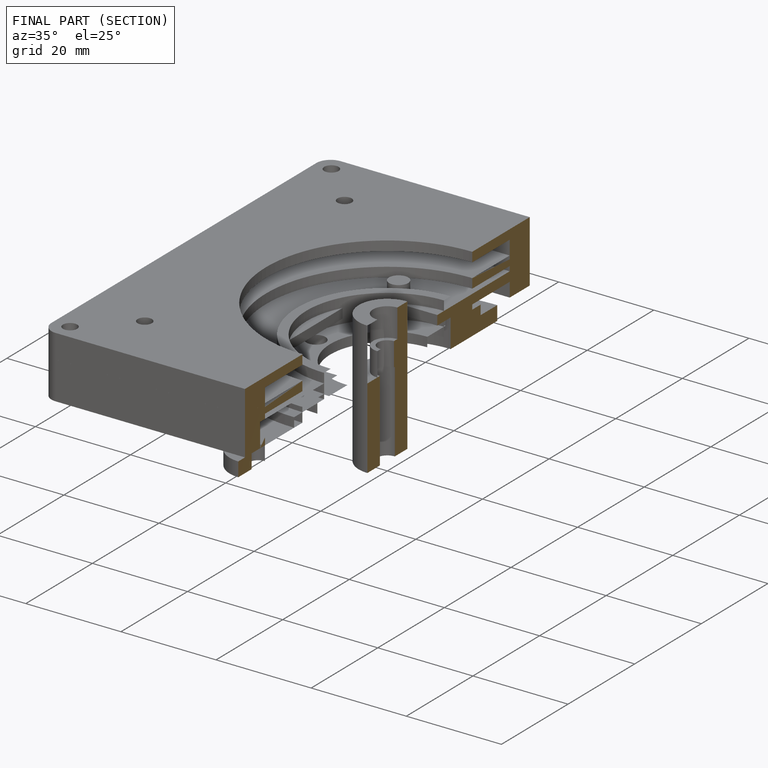
[diagram: finished part — half-section view (interior)]
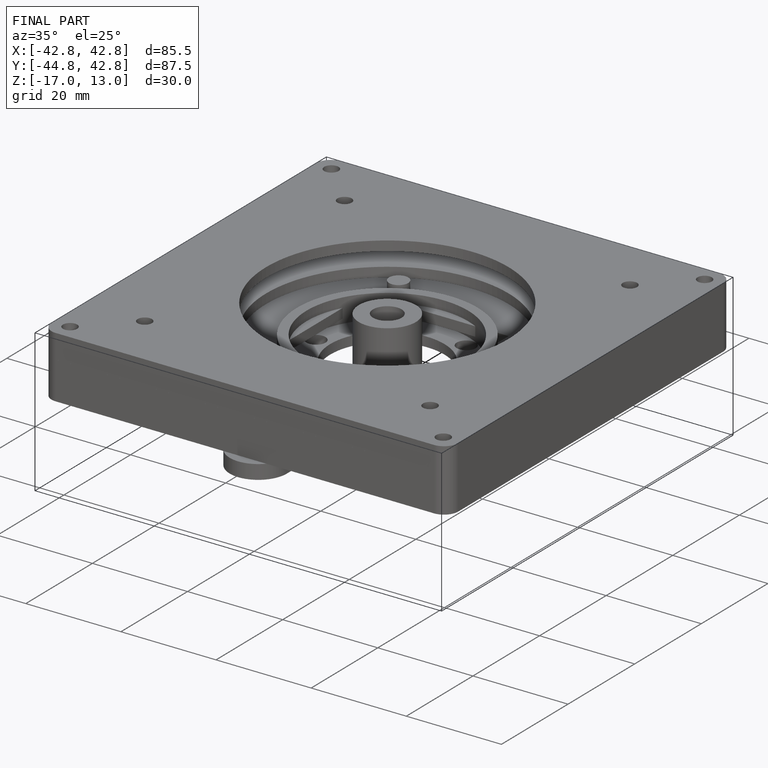
[diagram: finished part — iso view with bounding-box wireframe]
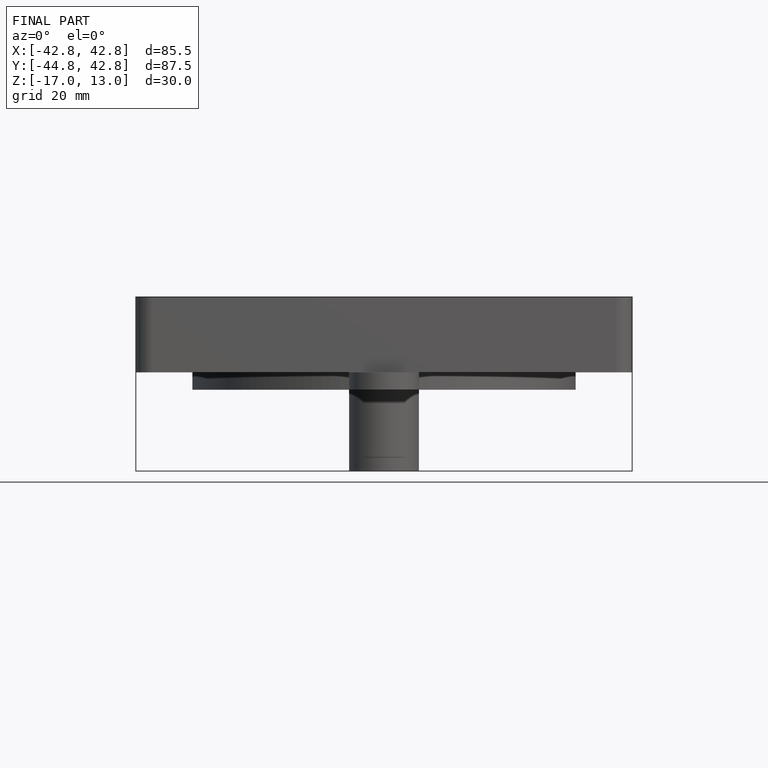
[diagram: finished part — front view with bounding-box wireframe]
